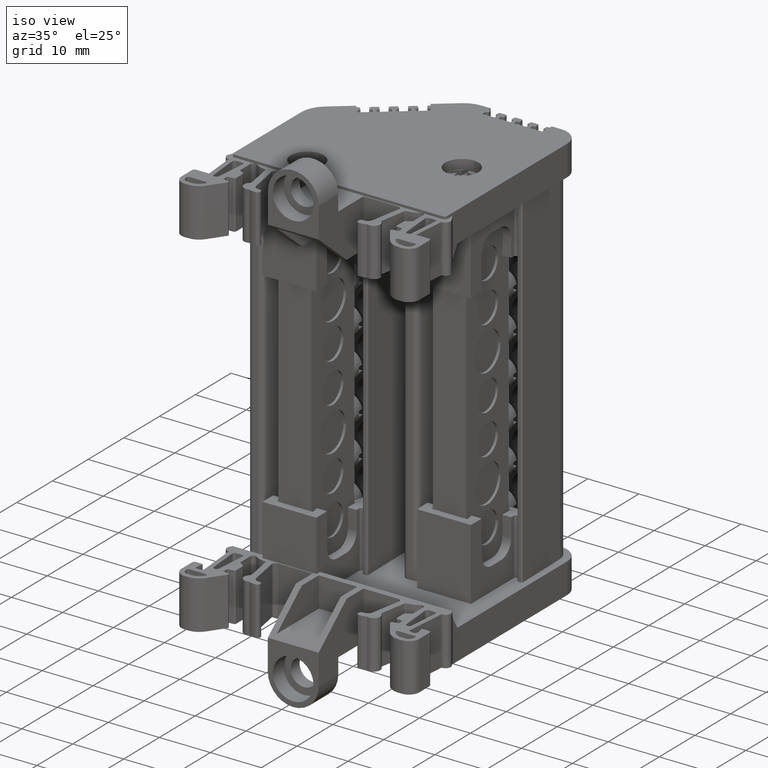
[diagram: clean part render]
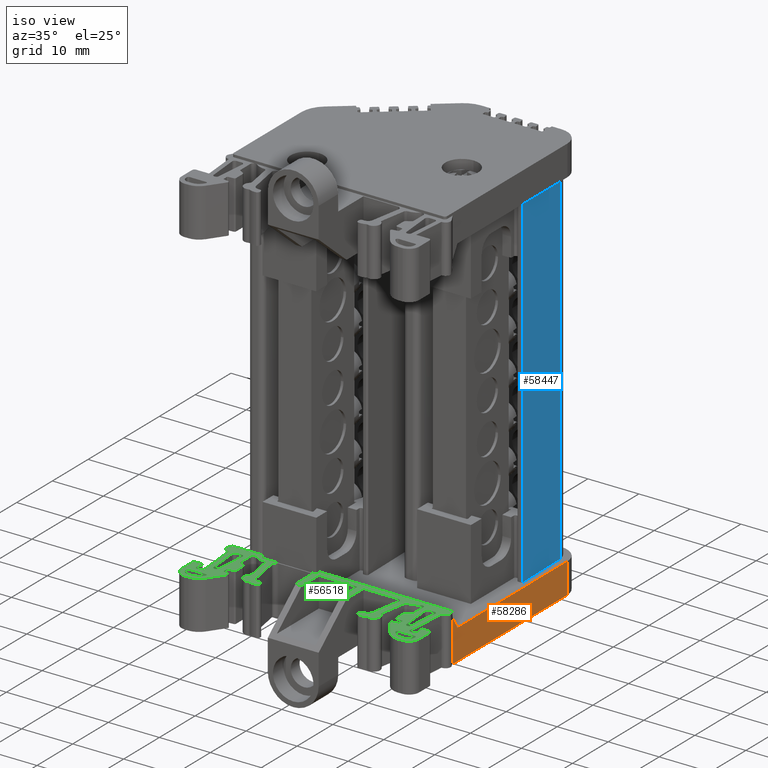
[diagram: same view with three faces highlighted in distinct colors, each labeled with its STEP entity id]
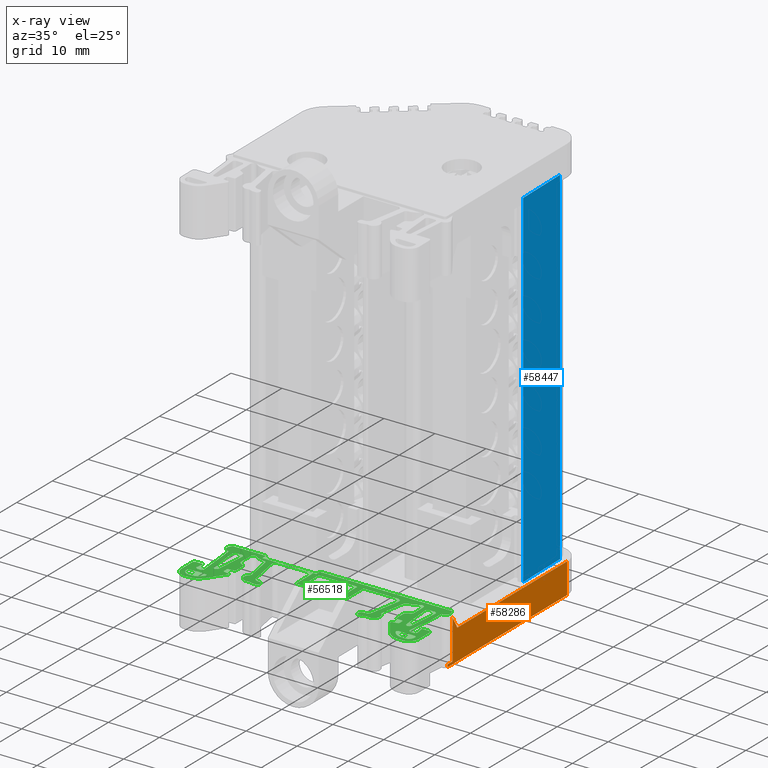
[diagram: x-ray of the same camera — body ghosted, the three highlighted faces saturated]
A machine part, iso view with three faces highlighted in distinct colors.
The next image is the same camera in x-ray (body ghosted, the three faces saturated) — at least one of them is partly hidden behind the body in this view.
Their STEP definitions:

[orange] entity #58286 — the highlighted planar face has unit normal (-1, -0, -0).
#956 = ORIENTED_EDGE ( 'NONE', *, *, #56904, .F. ) ;
#961 = ORIENTED_EDGE ( 'NONE', *, *, #53563, .T. ) ;
#966 = ORIENTED_EDGE ( 'NONE', *, *, #56910, .F. ) ;
#987 = ORIENTED_EDGE ( 'NONE', *, *, #56879, .T. ) ;
#1003 = ORIENTED_EDGE ( 'NONE', *, *, #56918, .F. ) ;
#1020 = ORIENTED_EDGE ( 'NONE', *, *, #56934, .F. ) ;
#1847 = ORIENTED_EDGE ( 'NONE', *, *, #56882, .F. ) ;
#4654 = PLANE ( 'NONE',  #11123 ) ;
#4678 = DIRECTION ( 'NONE',  ( -1.000000000000000000, -5.567141245485240800E-032, -6.938893903895729800E-018 ) ) ;
#4686 = CARTESIAN_POINT ( 'NONE',  ( -25.88403632107860000, 12.41911145422002100, 9.795974490130539900 ) ) ;
#4702 = DIRECTION ( 'NONE',  ( -6.938893903895729800E-018, 0.0000000000000000000, 1.000000000000000000 ) ) ;
#4704 = FACE_OUTER_BOUND ( 'NONE', #46010, .T. ) ;
#11123 = AXIS2_PLACEMENT_3D ( 'NONE', #4686, #4678, #4702 ) ;
#13348 = CARTESIAN_POINT ( 'NONE',  ( -25.88403632107861800, 11.42205551702720400, -42.06280227554849900 ) ) ;
#13368 = DIRECTION ( 'NONE',  ( -6.282516687065767900E-076, -1.000000000000000000, 3.575809622405604900E-046 ) ) ;
#13383 = LINE ( 'NONE', #13348, #13393 ) ;
#13386 = VECTOR ( 'NONE', #13416, 1000.000000000000000 ) ;
#13393 = VECTOR ( 'NONE', #13368, 1000.000000000000000 ) ;
#13402 = VECTOR ( 'NONE', #13770, 1000.000000000000000 ) ;
#13404 = VECTOR ( 'NONE', #13568, 1000.000000000000000 ) ;
#13416 = DIRECTION ( 'NONE',  ( 0.0000000000000000000, -1.000000000000000000, -0.0000000000000000000 ) ) ;
#13417 = VECTOR ( 'NONE', #13643, 1000.000000000000000 ) ;
#13419 = VECTOR ( 'NONE', #13688, 1000.000000000000200 ) ;
#13441 = LINE ( 'NONE', #13444, #13386 ) ;
#13444 = CARTESIAN_POINT ( 'NONE',  ( -25.88403632107859300, -10.62764597436904000, -41.56427430695350000 ) ) ;
#13557 = CARTESIAN_POINT ( 'NONE',  ( -25.88403632107860000, 45.48168290469490000, 9.795974490130539900 ) ) ;
#13568 = DIRECTION ( 'NONE',  ( -6.938893903895729800E-018, 0.0000000000000000000, 1.000000000000000000 ) ) ;
#13599 = LINE ( 'NONE', #13557, #13417 ) ;
#13617 = LINE ( 'NONE', #13626, #13404 ) ;
#13626 = CARTESIAN_POINT ( 'NONE',  ( -25.88403632107860000, 13.41374584738997600, 9.795974490130539900 ) ) ;
#13643 = DIRECTION ( 'NONE',  ( 6.938893903895729800E-018, -0.0000000000000000000, -1.000000000000000000 ) ) ;
#13661 = LINE ( 'NONE', #13704, #13419 ) ;
#13688 = DIRECTION ( 'NONE',  ( 0.0000000000000000000, 0.4999999999999241200, -0.8660254037844823400 ) ) ;
#13692 = CARTESIAN_POINT ( 'NONE',  ( -25.88403632107860000, 11.92058348562462000, 9.795974490130539900 ) ) ;
#13704 = CARTESIAN_POINT ( 'NONE',  ( -25.88403632107860000, 13.41374584738995600, -33.81500020757479100 ) ) ;
#13725 = LINE ( 'NONE', #13692, #13402 ) ;
#13770 = DIRECTION ( 'NONE',  ( -6.938893903895729800E-018, 0.0000000000000000000, 1.000000000000000000 ) ) ;
#21571 = LINE ( 'NONE', #21590, #59661 ) ;
#21584 = DIRECTION ( 'NONE',  ( 5.567141245485240800E-032, -1.000000000000000000, 3.862980245042401700E-049 ) ) ;
#21590 = CARTESIAN_POINT ( 'NONE',  ( -25.88403632107860000, 12.41911145422002100, -36.09779384098927600 ) ) ;
#31723 = CARTESIAN_POINT ( 'NONE',  ( -25.88403632107860000, 14.73171736614594700, -36.09779384098932600 ) ) ;
#33144 = CARTESIAN_POINT ( 'NONE',  ( -25.88403632107861800, 45.48168290469490000, -36.09779384098936100 ) ) ;
#35052 = CARTESIAN_POINT ( 'NONE',  ( -25.88403632107859700, 13.41374584738997600, -41.56427430695350000 ) ) ;
#35054 = CARTESIAN_POINT ( 'NONE',  ( -25.88403632107861800, 45.48168290469488500, -42.06280227554849900 ) ) ;
#35065 = CARTESIAN_POINT ( 'NONE',  ( -25.88403632107860700, 13.41374584738998100, -33.81500020757484700 ) ) ;
#35073 = CARTESIAN_POINT ( 'NONE',  ( -25.88403632107860000, 11.92058348562462400, -41.56427430695350000 ) ) ;
#35090 = CARTESIAN_POINT ( 'NONE',  ( -25.88403632107860000, 11.92058348562462000, -42.06280227554849900 ) ) ;
#46010 = EDGE_LOOP ( 'NONE', ( #956, #987, #1020, #1847, #966, #961, #1003 ) ) ;
#46491 = VERTEX_POINT ( 'NONE', #35065 ) ;
#46507 = VERTEX_POINT ( 'NONE', #35054 ) ;
#46525 = VERTEX_POINT ( 'NONE', #35073 ) ;
#46559 = VERTEX_POINT ( 'NONE', #35052 ) ;
#46591 = VERTEX_POINT ( 'NONE', #35090 ) ;
#50338 = VERTEX_POINT ( 'NONE', #33144 ) ;
#50384 = VERTEX_POINT ( 'NONE', #31723 ) ;
#53563 = EDGE_CURVE ( 'NONE', #50338, #50384, #21571, .T. ) ;
#56879 = EDGE_CURVE ( 'NONE', #46559, #46525, #13441, .T. ) ;
#56882 = EDGE_CURVE ( 'NONE', #46507, #46591, #13383, .T. ) ;
#56904 = EDGE_CURVE ( 'NONE', #46559, #46491, #13617, .T. ) ;
#56910 = EDGE_CURVE ( 'NONE', #50338, #46507, #13599, .T. ) ;
#56918 = EDGE_CURVE ( 'NONE', #46491, #50384, #13661, .T. ) ;
#56934 = EDGE_CURVE ( 'NONE', #46591, #46525, #13725, .T. ) ;
#58286 = ADVANCED_FACE ( 'NONE', ( #4704 ), #4654, .F. ) ;
#59661 = VECTOR ( 'NONE', #21584, 1000.000000000000000 ) ;

[blue] entity #58447 — the highlighted planar face has unit normal (-0.9998, -0.0175, 0).
#4313 = DIRECTION ( 'NONE',  ( -0.9998476951563916000, -0.01745240643726290300, 6.701918548398456300E-015 ) ) ;
#4320 = CARTESIAN_POINT ( 'NONE',  ( -27.17181190912783300, 34.97629996017929000, -37.10821079711177400 ) ) ;
#4333 = PLANE ( 'NONE',  #11386 ) ;
#4335 = DIRECTION ( 'NONE',  ( 0.01745240643726290300, -0.9998476951563916000, 0.0000000000000000000 ) ) ;
#4340 = FACE_OUTER_BOUND ( 'NONE', #42429, .T. ) ;
#7515 = VECTOR ( 'NONE', #22881, 1000.000000000000000 ) ;
#7557 = VECTOR ( 'NONE', #22330, 1000.000000000000000 ) ;
#9593 = CARTESIAN_POINT ( 'NONE',  ( -27.17181190912777200, 34.97629996017600000, -37.10821079711177400 ) ) ;
#9599 = LINE ( 'NONE', #9593, #14230 ) ;
#9619 = DIRECTION ( 'NONE',  ( 6.700897813742065900E-015, 1.169646064160809000E-016, 1.000000000000000000 ) ) ;
#11386 = AXIS2_PLACEMENT_3D ( 'NONE', #4320, #4313, #4335 ) ;
#14230 = VECTOR ( 'NONE', #9619, 1000.000000000000000 ) ;
#21745 = LINE ( 'NONE', #21755, #59366 ) ;
#21755 = CARTESIAN_POINT ( 'NONE',  ( -27.17181190912772900, 34.97629996017600000, -36.09779384098944600 ) ) ;
#21780 = CARTESIAN_POINT ( 'NONE',  ( -27.35670888277328700, 45.56904048598334400, -37.10821079711177400 ) ) ;
#21798 = DIRECTION ( 'NONE',  ( 0.01745240643727346400, -0.9998476951563913800, -0.0000000000000000000 ) ) ;
#22330 = DIRECTION ( 'NONE',  ( -6.700897813742065900E-015, -1.169646064160809000E-016, -1.000000000000000000 ) ) ;
#22881 = DIRECTION ( 'NONE',  ( 0.01745240643726290300, -0.9998476951563916000, 0.0000000000000000000 ) ) ;
#22888 = LINE ( 'NONE', #22929, #7515 ) ;
#22929 = CARTESIAN_POINT ( 'NONE',  ( -27.17181190912737100, 34.97629996017929700, 31.97218928989244800 ) ) ;
#22997 = LINE ( 'NONE', #21780, #7557 ) ;
#31720 = CARTESIAN_POINT ( 'NONE',  ( -27.17181190912729200, 34.97629996017578700, 31.97218928989245500 ) ) ;
#31843 = CARTESIAN_POINT ( 'NONE',  ( -27.17181190912772900, 34.97629996017600000, -36.09779384098944600 ) ) ;
#33110 = CARTESIAN_POINT ( 'NONE',  ( -27.35670888277296300, 45.56904048598334400, 31.97218928989244100 ) ) ;
#33146 = CARTESIAN_POINT ( 'NONE',  ( -27.35670888277335400, 45.56904048598342900, -36.09779384098944600 ) ) ;
#42429 = EDGE_LOOP ( 'NONE', ( #54754, #54680, #54642, #54689 ) ) ;
#50322 = VERTEX_POINT ( 'NONE', #33146 ) ;
#50335 = VERTEX_POINT ( 'NONE', #33110 ) ;
#50356 = VERTEX_POINT ( 'NONE', #31720 ) ;
#50491 = VERTEX_POINT ( 'NONE', #31843 ) ;
#53470 = EDGE_CURVE ( 'NONE', #50335, #50322, #22997, .T. ) ;
#53482 = EDGE_CURVE ( 'NONE', #50335, #50356, #22888, .T. ) ;
#53626 = EDGE_CURVE ( 'NONE', #50322, #50491, #21745, .T. ) ;
#54642 = ORIENTED_EDGE ( 'NONE', *, *, #53626, .F. ) ;
#54680 = ORIENTED_EDGE ( 'NONE', *, *, #57248, .F. ) ;
#54689 = ORIENTED_EDGE ( 'NONE', *, *, #53470, .F. ) ;
#54754 = ORIENTED_EDGE ( 'NONE', *, *, #53482, .T. ) ;
#57248 = EDGE_CURVE ( 'NONE', #50491, #50356, #9599, .T. ) ;
#58447 = ADVANCED_FACE ( 'NONE', ( #4340 ), #4333, .F. ) ;
#59366 = VECTOR ( 'NONE', #21798, 1000.000000000000200 ) ;

[green] entity #56518 — the highlighted planar face has unit normal (-0, 0, 1).
#2502 = B_SPLINE_CURVE_WITH_KNOTS ( 'NONE', 3,
 ( #8294, #8297, #8348, #8375 ),
 .UNSPECIFIED., .F., .F.,
 ( 4, 4 ),
 ( 0.0000000000000000000, 1.000000000000000000 ),
 .UNSPECIFIED. ) ;
#2510 = B_SPLINE_CURVE_WITH_KNOTS ( 'NONE', 3,
 ( #8325, #8295, #8329, #8298 ),
 .UNSPECIFIED., .F., .F.,
 ( 4, 4 ),
 ( 0.0000000000000000000, 1.000000000000000000 ),
 .UNSPECIFIED. ) ;
#2514 = B_SPLINE_CURVE_WITH_KNOTS ( 'NONE', 3,
 ( #8793, #8817, #8783, #8818 ),
 .UNSPECIFIED., .F., .F.,
 ( 4, 4 ),
 ( 0.0000000000000000000, 1.000000000000000000 ),
 .UNSPECIFIED. ) ;
#2515 = B_SPLINE_CURVE_WITH_KNOTS ( 'NONE', 3,
 ( #9527, #9529, #9532, #9534 ),
 .UNSPECIFIED., .F., .F.,
 ( 4, 4 ),
 ( 0.0000000000000000000, 1.000000000000000000 ),
 .UNSPECIFIED. ) ;
#7702 = DIRECTION ( 'NONE',  ( -1.000000000000000000, 2.018221001525949000E-014, 0.0000000000000000000 ) ) ;
#7784 = DIRECTION ( 'NONE',  ( -6.093150577467555700E-076, -1.000000000000000000, 3.468028427291094800E-046 ) ) ;
#8293 = DIRECTION ( 'NONE',  ( 0.0000000000000000000, 0.0000000000000000000, -1.000000000000000000 ) ) ;
#8294 = CARTESIAN_POINT ( 'NONE',  ( -28.92763558614225200, 9.982727629559109400, -32.09224290364844700 ) ) ;
#8295 = CARTESIAN_POINT ( 'NONE',  ( -64.71611886262259400, 10.01169401314790600, -32.09224290364844700 ) ) ;
#8296 = DIRECTION ( 'NONE',  ( 0.0000000000000000000, 0.0000000000000000000, -1.000000000000000000 ) ) ;
#8297 = CARTESIAN_POINT ( 'NONE',  ( -28.92825792728451300, 9.997210770287228600, -32.09224290364844700 ) ) ;
#8298 = CARTESIAN_POINT ( 'NONE',  ( -64.71738356224274500, 9.982727629558995700, -32.09224290364844700 ) ) ;
#8303 = CARTESIAN_POINT ( 'NONE',  ( -23.52410936040080000, 11.42205551702720400, -32.09224290364844700 ) ) ;
#8304 = LINE ( 'NONE', #8358, #14609 ) ;
#8309 = DIRECTION ( 'NONE',  ( -1.000000000000000000, 0.0000000000000000000, 0.0000000000000000000 ) ) ;
#8310 = CARTESIAN_POINT ( 'NONE',  ( -26.91125396329432100, 9.982753668836506800, -32.09224290364844700 ) ) ;
#8313 = LINE ( 'NONE', #8310, #14594 ) ;
#8317 = DIRECTION ( 'NONE',  ( 0.0000000000000000000, 0.0000000000000000000, -1.000000000000000000 ) ) ;
#8319 = DIRECTION ( 'NONE',  ( -1.000000000000000000, 0.0000000000000000000, 0.0000000000000000000 ) ) ;
#8321 = DIRECTION ( 'NONE',  ( -0.08710351041734172600, -0.9961992664487240300, 0.0000000000000000000 ) ) ;
#8325 = CARTESIAN_POINT ( 'NONE',  ( -64.71548651281251800, 10.02617720494236100, -32.09224290364844700 ) ) ;
#8326 = DIRECTION ( 'NONE',  ( -1.000000000000000000, 0.0000000000000000000, 0.0000000000000000000 ) ) ;
#8327 = DIRECTION ( 'NONE',  ( 6.093150577467555700E-076, 1.000000000000000000, -3.468028427291094800E-046 ) ) ;
#8329 = CARTESIAN_POINT ( 'NONE',  ( -64.71675121243266900, 9.997210821353450100, -32.09224290364844700 ) ) ;
#8331 = CARTESIAN_POINT ( 'NONE',  ( -68.12679791360422100, 0.6686412226661678800, -32.09224290364844700 ) ) ;
#8332 = CARTESIAN_POINT ( 'NONE',  ( -26.15811495987020100, 2.592641183054170000, -32.09224290364844700 ) ) ;
#8334 = CARTESIAN_POINT ( 'NONE',  ( -27.40788715991285000, 10.02617720494236100, -32.09224290364844700 ) ) ;
#8335 = LINE ( 'NONE', #8303, #14588 ) ;
#8337 = CARTESIAN_POINT ( 'NONE',  ( -69.62239988585540100, 3.589689513311057100, -32.09224290364844700 ) ) ;
#8338 = CARTESIAN_POINT ( 'NONE',  ( -51.09073332295690100, 10.52470517353735600, -32.09224290364844700 ) ) ;
#8339 = DIRECTION ( 'NONE',  ( -0.9848141832495763700, -0.1736117060294895300, 0.0000000000000000000 ) ) ;
#8342 = DIRECTION ( 'NONE',  ( -1.000000000000000000, -1.794215868813569100E-015, 0.0000000000000000000 ) ) ;
#8344 = LINE ( 'NONE', #8352, #14630 ) ;
#8345 = DIRECTION ( 'NONE',  ( 1.000000000000000000, 0.0000000000000000000, 1.756949432570529700E-030 ) ) ;
#8346 = CARTESIAN_POINT ( 'NONE',  ( -25.51822123478080000, 0.6686412226661632200, -32.09224290364844700 ) ) ;
#8348 = CARTESIAN_POINT ( 'NONE',  ( -28.92888026842677400, 10.01169391101542100, -32.09224290364844700 ) ) ;
#8352 = CARTESIAN_POINT ( 'NONE',  ( -29.78838429657174900, 3.650746117920575800, -32.09224290364844700 ) ) ;
#8355 = CARTESIAN_POINT ( 'NONE',  ( -26.64907370669581600, 2.679183914619511800, -32.09224290364844700 ) ) ;
#8356 = DIRECTION ( 'NONE',  ( 0.08710351041733822900, 0.9961992664487243600, 0.0000000000000000000 ) ) ;
#8358 = CARTESIAN_POINT ( 'NONE',  ( -30.88540741133443000, 3.025241881214412000, -32.09224290364844700 ) ) ;
#8361 = LINE ( 'NONE', #8355, #14596 ) ;
#8367 = DIRECTION ( 'NONE',  ( 0.5736077411146210900, -0.8191301235660800600, 0.0000000000000000000 ) ) ;
#8370 = CARTESIAN_POINT ( 'NONE',  ( -68.12679791360422100, 0.6686412226661678800, -32.09224290364844000 ) ) ;
#8372 = DIRECTION ( 'NONE',  ( 0.0000000000000000000, 0.0000000000000000000, -1.000000000000000000 ) ) ;
#8374 = DIRECTION ( 'NONE',  ( -1.000000000000000000, 0.0000000000000000000, 0.0000000000000000000 ) ) ;
#8375 = CARTESIAN_POINT ( 'NONE',  ( -28.92951762257074600, 10.02617712834298700, -32.09224290364844700 ) ) ;
#8377 = DIRECTION ( 'NONE',  ( -0.0000000000000000000, -0.0000000000000000000, 1.000000000000000000 ) ) ;
#8378 = DIRECTION ( 'NONE',  ( -0.0000000000000000000, -0.0000000000000000000, 1.000000000000000000 ) ) ;
#8379 = DIRECTION ( 'NONE',  ( -1.000000000000000000, 0.0000000000000000000, 0.0000000000000000000 ) ) ;
#8380 = LINE ( 'NONE', #8338, #14578 ) ;
#8383 = DIRECTION ( 'NONE',  ( -1.000000000000000000, 0.0000000000000000000, 0.0000000000000000000 ) ) ;
#8386 = CARTESIAN_POINT ( 'NONE',  ( -51.09073332295690100, -1.325470651713841300, -32.09224290364844700 ) ) ;
#8393 = DIRECTION ( 'NONE',  ( 1.000000000000000000, 0.0000000000000000000, 1.756949432570529700E-030 ) ) ;
#8394 = LINE ( 'NONE', #8405, #14605 ) ;
#8405 = CARTESIAN_POINT ( 'NONE',  ( -25.39367753908719300, 11.42205551702720400, -32.09224290364844700 ) ) ;
#8410 = CARTESIAN_POINT ( 'NONE',  ( -65.21401448140751700, 10.02617720494236100, -32.09224290364844700 ) ) ;
#8422 = DIRECTION ( 'NONE',  ( -0.1736371585637144800, -0.9848096959138447100, 0.0000000000000000000 ) ) ;
#8423 = DIRECTION ( 'NONE',  ( 6.093150577467555700E-076, 1.000000000000000000, -3.468028427291094800E-046 ) ) ;
#8424 = CARTESIAN_POINT ( 'NONE',  ( -60.92960436518970400, 10.11878057843015800, -32.09224290364844700 ) ) ;
#8425 = DIRECTION ( 'NONE',  ( 0.0000000000000000000, 0.0000000000000000000, -1.000000000000000000 ) ) ;
#8427 = CARTESIAN_POINT ( 'NONE',  ( -64.02142592279889800, -29.92678038736905000, -32.09224290364844700 ) ) ;
#8429 = DIRECTION ( 'NONE',  ( -0.0000000000000000000, -0.0000000000000000000, 1.000000000000000000 ) ) ;
#8431 = CARTESIAN_POINT ( 'NONE',  ( -36.39355681949194800, 4.811504339307409900, -32.09224290364844700 ) ) ;
#8433 = LINE ( 'NONE', #8469, #11762 ) ;
#8434 = LINE ( 'NONE', #8386, #14581 ) ;
#8437 = DIRECTION ( 'NONE',  ( 0.0000000000000000000, 0.0000000000000000000, -1.000000000000000000 ) ) ;
#8439 = LINE ( 'NONE', #8443, #11844 ) ;
#8440 = LINE ( 'NONE', #8499, #13187 ) ;
#8442 = LINE ( 'NONE', #8505, #11841 ) ;
#8443 = CARTESIAN_POINT ( 'NONE',  ( -49.96710536100780300, 6.011457176249989800, -32.09224290364844700 ) ) ;
#8448 = DIRECTION ( 'NONE',  ( -0.0000000000000000000, -0.0000000000000000000, -1.000000000000000000 ) ) ;
#8449 = LINE ( 'NONE', #8523, #11944 ) ;
#8453 = CARTESIAN_POINT ( 'NONE',  ( -60.70859479149780200, 14.10087593621700500, -32.09224290364844700 ) ) ;
#8457 = LINE ( 'NONE', #8507, #11821 ) ;
#8458 = DIRECTION ( 'NONE',  ( -1.000000000000000000, 0.0000000000000000000, 0.0000000000000000000 ) ) ;
#8465 = DIRECTION ( 'NONE',  ( -1.000000000000000000, -0.0000000000000000000, -0.0000000000000000000 ) ) ;
#8466 = CARTESIAN_POINT ( 'NONE',  ( -27.91929140627805200, 4.177267871130645500, -32.09224290364844700 ) ) ;
#8467 = DIRECTION ( 'NONE',  ( -0.0000000000000000000, -1.000000000000000000, -0.0000000000000000000 ) ) ;
#8468 = DIRECTION ( 'NONE',  ( 0.0000000000000000000, 0.0000000000000000000, -1.000000000000000000 ) ) ;
#8469 = CARTESIAN_POINT ( 'NONE',  ( -51.09073332295690100, 11.22264432959170800, -32.09224290364844700 ) ) ;
#8470 = CARTESIAN_POINT ( 'NONE',  ( -43.03369701287485300, 11.42205551702720400, -32.09224290364844700 ) ) ;
#8471 = DIRECTION ( 'NONE',  ( -0.0000000000000000000, -0.0000000000000000000, -1.000000000000000000 ) ) ;
#8472 = DIRECTION ( 'NONE',  ( -6.093150577467555700E-076, -1.000000000000000000, 3.468028427291094800E-046 ) ) ;
#8473 = CARTESIAN_POINT ( 'NONE',  ( -47.10250957419252400, 4.088199415439874900, -32.09224290364844700 ) ) ;
#8478 = DIRECTION ( 'NONE',  ( 1.000000000000000000, 0.0000000000000000000, 1.756949432570529700E-030 ) ) ;
#8480 = LINE ( 'NONE', #8473, #13133 ) ;
#8483 = CARTESIAN_POINT ( 'NONE',  ( -58.37179495304390300, 2.308927385588840100, -32.09224290364844700 ) ) ;
#8485 = LINE ( 'NONE', #8470, #11894 ) ;
#8486 = DIRECTION ( 'NONE',  ( 0.0000000000000000000, 0.0000000000000000000, -1.000000000000000000 ) ) ;
#8488 = CARTESIAN_POINT ( 'NONE',  ( -25.88463346532639900, 11.42205551700835800, -32.09224290364845400 ) ) ;
#8490 = LINE ( 'NONE', #8427, #11808 ) ;
#8492 = DIRECTION ( 'NONE',  ( -1.000000000000000000, 0.0000000000000000000, 0.0000000000000000000 ) ) ;
#8494 = CARTESIAN_POINT ( 'NONE',  ( -63.82201596516300400, 3.847128051642844800, -32.09224290364844700 ) ) ;
#8495 = DIRECTION ( 'NONE',  ( 0.0000000000000000000, 0.0000000000000000000, -1.000000000000000000 ) ) ;
#8497 = DIRECTION ( 'NONE',  ( -1.000000000000000000, 0.0000000000000000000, 0.0000000000000000000 ) ) ;
#8499 = CARTESIAN_POINT ( 'NONE',  ( -47.10250957419252400, 2.094113214459290000, -32.09224290364844700 ) ) ;
#8501 = DIRECTION ( 'NONE',  ( 1.000000000000000000, 0.0000000000000000000, -0.0000000000000000000 ) ) ;
#8503 = DIRECTION ( 'NONE',  ( 0.0000000000000000000, 0.0000000000000000000, -1.000000000000000000 ) ) ;
#8505 = CARTESIAN_POINT ( 'NONE',  ( -34.37460030079460400, 10.46954577266141800, -32.09224290364844700 ) ) ;
#8507 = CARTESIAN_POINT ( 'NONE',  ( -46.82250957419249500, 2.568151965270909700, -32.09224290364844700 ) ) ;
#8508 = DIRECTION ( 'NONE',  ( 1.000000000000000000, 1.739845690970733800E-015, 0.0000000000000000000 ) ) ;
#8509 = DIRECTION ( 'NONE',  ( -1.000000000000000000, 0.0000000000000000000, 0.0000000000000000000 ) ) ;
#8511 = CARTESIAN_POINT ( 'NONE',  ( -46.82250957419249500, -0.4281203082428309800, -32.09224290364844700 ) ) ;
#8512 = DIRECTION ( 'NONE',  ( 1.000000000000000000, 0.0000000000000000000, -0.0000000000000000000 ) ) ;
#8513 = LINE ( 'NONE', #8550, #11948 ) ;
#8514 = DIRECTION ( 'NONE',  ( -1.000000000000000000, 0.0000000000000000000, 0.0000000000000000000 ) ) ;
#8515 = CARTESIAN_POINT ( 'NONE',  ( -36.71478198437225200, 3.265951153734130100, -32.09224290364844700 ) ) ;
#8517 = DIRECTION ( 'NONE',  ( -1.000000000000000000, 0.0000000000000000000, 0.0000000000000000000 ) ) ;
#8518 = DIRECTION ( 'NONE',  ( 1.000000000000000000, -3.479691381941455600E-014, 0.0000000000000000000 ) ) ;
#8521 = DIRECTION ( 'NONE',  ( -0.0000000000000000000, -1.000000000000000000, -0.0000000000000000000 ) ) ;
#8523 = CARTESIAN_POINT ( 'NONE',  ( -56.43160840355399400, -29.92678038736905000, -32.09224290364844700 ) ) ;
#8524 = CARTESIAN_POINT ( 'NONE',  ( -67.76098282730639300, 11.42205551700835800, -32.09224290364844700 ) ) ;
#8525 = LINE ( 'NONE', #8565, #13699 ) ;
#8529 = DIRECTION ( 'NONE',  ( -1.000000000000000000, 0.0000000000000000000, 0.0000000000000000000 ) ) ;
#8530 = DIRECTION ( 'NONE',  ( 1.000000000000000000, 0.0000000000000000000, 1.756949432570529700E-030 ) ) ;
#8532 = DIRECTION ( 'NONE',  ( 6.093150577467555700E-076, 1.000000000000000000, -3.468028427291094800E-046 ) ) ;
#8533 = CARTESIAN_POINT ( 'NONE',  ( -65.71014727590539900, 0.8976460898312909100, -32.09224290364844700 ) ) ;
#8534 = DIRECTION ( 'NONE',  ( -1.000000000000000000, 0.0000000000000000000, 0.0000000000000000000 ) ) ;
#8536 = DIRECTION ( 'NONE',  ( 0.0000000000000000000, 0.0000000000000000000, -1.000000000000000000 ) ) ;
#8537 = CARTESIAN_POINT ( 'NONE',  ( -32.93642435688730100, 14.10087593621698000, -32.09224290364844700 ) ) ;
#8538 = DIRECTION ( 'NONE',  ( -1.000000000000000000, -0.0000000000000000000, -1.756949432570529700E-030 ) ) ;
#8539 = CARTESIAN_POINT ( 'NONE',  ( -62.87616026712331100, 5.182158454427670000, -32.09224290364844000 ) ) ;
#8541 = LINE ( 'NONE', #8511, #11951 ) ;
#8542 = LINE ( 'NONE', #8575, #13212 ) ;
#8545 = CARTESIAN_POINT ( 'NONE',  ( -51.09073332295690100, 11.22264432959167900, -32.09224290364844700 ) ) ;
#8546 = CARTESIAN_POINT ( 'NONE',  ( -51.09073332295690100, 11.22264432959170900, -32.09224290364844700 ) ) ;
#8547 = DIRECTION ( 'NONE',  ( -1.000000000000000000, 0.0000000000000000000, 0.0000000000000000000 ) ) ;
#8548 = DIRECTION ( 'NONE',  ( 6.093150577467555700E-076, 1.000000000000000000, -3.468028427291094800E-046 ) ) ;
#8549 = CARTESIAN_POINT ( 'NONE',  ( -63.27408835919230500, 10.92352754841270000, -32.09224290364844700 ) ) ;
#8550 = CARTESIAN_POINT ( 'NONE',  ( -51.09073332295690100, 3.764579914192923500, -32.09224290364844700 ) ) ;
#8552 = DIRECTION ( 'NONE',  ( -1.000000000000000000, 0.0000000000000000000, 0.0000000000000000000 ) ) ;
#8554 = LINE ( 'NONE', #8578, #12097 ) ;
#8556 = DIRECTION ( 'NONE',  ( -1.000000000000000000, 0.0000000000000000000, 0.0000000000000000000 ) ) ;
#8558 = CARTESIAN_POINT ( 'NONE',  ( -51.09073332295690100, 2.568151965270850700, -32.09224290364844700 ) ) ;
#8560 = DIRECTION ( 'NONE',  ( 0.0000000000000000000, 0.0000000000000000000, -1.000000000000000000 ) ) ;
#8562 = LINE ( 'NONE', #8580, #11881 ) ;
#8564 = CARTESIAN_POINT ( 'NONE',  ( -62.57705949655599700, 11.42205551702720400, -32.09224290364844700 ) ) ;
#8565 = CARTESIAN_POINT ( 'NONE',  ( -51.09073332295690100, 4.088199415439872200, -32.09224290364844700 ) ) ;
#8566 = CARTESIAN_POINT ( 'NONE',  ( -63.07544601612038800, 6.983914639744130100, -32.09224290364844700 ) ) ;
#8567 = LINE ( 'NONE', #8545, #13495 ) ;
#8568 = DIRECTION ( 'NONE',  ( -0.0000000000000000000, -0.0000000000000000000, 1.000000000000000000 ) ) ;
#8569 = CARTESIAN_POINT ( 'NONE',  ( -68.01157767929420600, 2.592641183054274800, -32.09224290364844700 ) ) ;
#8570 = DIRECTION ( 'NONE',  ( -1.000000000000000000, -1.988395075395374500E-015, 0.0000000000000000000 ) ) ;
#8573 = CARTESIAN_POINT ( 'NONE',  ( -30.12167133169669600, 7.817988302000100200, -32.09224290364844700 ) ) ;
#8574 = DIRECTION ( 'NONE',  ( -1.000000000000000000, 0.0000000000000000000, 0.0000000000000000000 ) ) ;
#8575 = CARTESIAN_POINT ( 'NONE',  ( -73.41990458191253300, -25.19389111586334800, -32.09224290364844700 ) ) ;
#8576 = DIRECTION ( 'NONE',  ( 0.1736400781270108500, -0.9848091811452843700, 0.0000000000000000000 ) ) ;
#8577 = CARTESIAN_POINT ( 'NONE',  ( -36.71490084270224900, 3.066661867399632000, -32.09224290364844700 ) ) ;
#8578 = CARTESIAN_POINT ( 'NONE',  ( -60.43864944465951100, 10.20534501384514100, -32.09224290364844700 ) ) ;
#8579 = DIRECTION ( 'NONE',  ( 0.0000000000000000000, 0.0000000000000000000, -1.000000000000000000 ) ) ;
#8580 = CARTESIAN_POINT ( 'NONE',  ( -50.61132213551890400, 11.42205551702720400, -32.09224290364844700 ) ) ;
#8581 = DIRECTION ( 'NONE',  ( 0.0000000000000000000, 0.0000000000000000000, -1.000000000000000000 ) ) ;
#8582 = LINE ( 'NONE', #8564, #11864 ) ;
#8584 = DIRECTION ( 'NONE',  ( -1.000000000000000000, -0.0000000000000000000, -1.756949432570529700E-030 ) ) ;
#8585 = DIRECTION ( 'NONE',  ( 0.0000000000000000000, 0.0000000000000000000, -1.000000000000000000 ) ) ;
#8587 = DIRECTION ( 'NONE',  ( 0.0000000000000000000, 0.0000000000000000000, -1.000000000000000000 ) ) ;
#8588 = DIRECTION ( 'NONE',  ( -1.000000000000000000, -1.988395075395382400E-015, 0.0000000000000000000 ) ) ;
#8590 = DIRECTION ( 'NONE',  ( -0.9961937174961162900, -0.08716695028087220700, -0.0000000000000000000 ) ) ;
#8592 = DIRECTION ( 'NONE',  ( 0.0000000000000000000, 0.0000000000000000000, -1.000000000000000000 ) ) ;
#8593 = LINE ( 'NONE', #8573, #14163 ) ;
#8595 = LINE ( 'NONE', #8558, #11968 ) ;
#8596 = DIRECTION ( 'NONE',  ( 0.0000000000000000000, 0.0000000000000000000, -1.000000000000000000 ) ) ;
#8597 = DIRECTION ( 'NONE',  ( -0.8660306462564758600, -0.4999909196621382700, 0.0000000000000000000 ) ) ;
#8598 = LINE ( 'NONE', #8546, #12074 ) ;
#8599 = CARTESIAN_POINT ( 'NONE',  ( -30.52595015191705100, 10.92352754843470000, -32.09224290364844700 ) ) ;
#8604 = CARTESIAN_POINT ( 'NONE',  ( -35.27322419534120000, 2.308927385588834800, -32.09224290364844700 ) ) ;
#8605 = DIRECTION ( 'NONE',  ( 0.0000000000000000000, 0.0000000000000000000, -1.000000000000000000 ) ) ;
#8611 = DIRECTION ( 'NONE',  ( 1.000000000000000000, 0.0000000000000000000, 1.756949432570529700E-030 ) ) ;
#8613 = DIRECTION ( 'NONE',  ( 0.0000000000000000000, 0.0000000000000000000, -1.000000000000000000 ) ) ;
#8615 = DIRECTION ( 'NONE',  ( -1.000000000000000000, 0.0000000000000000000, 0.0000000000000000000 ) ) ;
#8618 = CARTESIAN_POINT ( 'NONE',  ( -56.93011830568269700, 3.066661867399689700, -32.09224290364844700 ) ) ;
#8619 = DIRECTION ( 'NONE',  ( -1.000000000000000000, -2.087814829164774800E-015, 0.0000000000000000000 ) ) ;
#8620 = DIRECTION ( 'NONE',  ( 0.0000000000000000000, 0.0000000000000000000, -1.000000000000000000 ) ) ;
#8621 = LINE ( 'NONE', #8640, #20870 ) ;
#8623 = CARTESIAN_POINT ( 'NONE',  ( -51.09073332295690100, 1.196762870988283800, -32.09224290364844700 ) ) ;
#8624 = DIRECTION ( 'NONE',  ( 0.0000000000000000000, 0.0000000000000000000, -1.000000000000000000 ) ) ;
#8626 = DIRECTION ( 'NONE',  ( 0.0000000000000000000, 0.0000000000000000000, -1.000000000000000000 ) ) ;
#8627 = DIRECTION ( 'NONE',  ( -0.0000000000000000000, -0.0000000000000000000, 1.000000000000000000 ) ) ;
#8628 = CARTESIAN_POINT ( 'NONE',  ( -30.37093078919264900, 10.92352754841270000, -32.09224290364844700 ) ) ;
#8629 = CARTESIAN_POINT ( 'NONE',  ( -67.36331140269159300, 1.665669461814499800, -32.09224290364844700 ) ) ;
#8631 = DIRECTION ( 'NONE',  ( -1.000000000000000000, 0.0000000000000000000, 0.0000000000000000000 ) ) ;
#8632 = LINE ( 'NONE', #8663, #11684 ) ;
#8634 = CARTESIAN_POINT ( 'NONE',  ( -34.86563824515275200, 10.55603930187504100, -32.09224290364844700 ) ) ;
#8636 = CARTESIAN_POINT ( 'NONE',  ( -68.49161423867991500, 3.888800341139845100, -32.09224290364844700 ) ) ;
#8637 = CARTESIAN_POINT ( 'NONE',  ( -67.76038568305870100, 11.42205551700835800, -32.09224290364844700 ) ) ;
#8639 = DIRECTION ( 'NONE',  ( 1.000000000000000000, -2.475049992240059700E-016, -0.0000000000000000000 ) ) ;
#8640 = CARTESIAN_POINT ( 'NONE',  ( -70.12090978798420300, 11.42205551702720400, -32.09224290364844700 ) ) ;
#8642 = CARTESIAN_POINT ( 'NONE',  ( -67.67353861084690400, 10.42878912377134000, -32.09224290364844700 ) ) ;
#8644 = DIRECTION ( 'NONE',  ( -6.093150577467555700E-076, -1.000000000000000000, 3.468028427291094800E-046 ) ) ;
#8645 = CARTESIAN_POINT ( 'NONE',  ( -34.72076899378924300, 3.964006661576545000, -32.09224290364844700 ) ) ;
#8646 = CARTESIAN_POINT ( 'NONE',  ( -26.28170774569335000, 1.665669461814489800, -32.09224290364844700 ) ) ;
#8648 = DIRECTION ( 'NONE',  ( -1.000000000000000000, -3.552184952358224700E-015, 0.0000000000000000000 ) ) ;
#8649 = CARTESIAN_POINT ( 'NONE',  ( -36.39342605802330200, 4.761633410349879200, -32.09224290364844700 ) ) ;
#8650 = DIRECTION ( 'NONE',  ( 0.0000000000000000000, 0.0000000000000000000, -1.000000000000000000 ) ) ;
#8651 = DIRECTION ( 'NONE',  ( 0.0000000000000000000, 0.0000000000000000000, -1.000000000000000000 ) ) ;
#8652 = DIRECTION ( 'NONE',  ( -1.000000000000000000, 0.0000000000000000000, 0.0000000000000000000 ) ) ;
#8653 = DIRECTION ( 'NONE',  ( -1.000000000000000000, 0.0000000000000000000, 0.0000000000000000000 ) ) ;
#8654 = DIRECTION ( 'NONE',  ( 1.000000000000000000, 0.0000000000000000000, 1.756949432570529700E-030 ) ) ;
#8655 = LINE ( 'NONE', #8623, #12054 ) ;
#8656 = DIRECTION ( 'NONE',  ( 1.000000000000000000, 1.739845690970727900E-015, 0.0000000000000000000 ) ) ;
#8657 = DIRECTION ( 'NONE',  ( -1.000000000000000000, 0.0000000000000000000, 0.0000000000000000000 ) ) ;
#8658 = LINE ( 'NONE', #8679, #11654 ) ;
#8659 = DIRECTION ( 'NONE',  ( -1.000000000000000000, 0.0000000000000000000, 0.0000000000000000000 ) ) ;
#8661 = DIRECTION ( 'NONE',  ( -1.000000000000000000, 0.0000000000000000000, 0.0000000000000000000 ) ) ;
#8663 = CARTESIAN_POINT ( 'NONE',  ( -46.82250957419249500, 3.764579914192924800, -32.09224290364844700 ) ) ;
#8665 = DIRECTION ( 'NONE',  ( -0.0000000000000000000, -0.0000000000000000000, 1.000000000000000000 ) ) ;
#8666 = DIRECTION ( 'NONE',  ( -1.000000000000000000, 0.0000000000000000000, 0.0000000000000000000 ) ) ;
#8669 = DIRECTION ( 'NONE',  ( 0.0000000000000000000, 0.0000000000000000000, -1.000000000000000000 ) ) ;
#8670 = CARTESIAN_POINT ( 'NONE',  ( -30.76885888126175000, 5.182158454427670000, -32.09224290364844700 ) ) ;
#8671 = DIRECTION ( 'NONE',  ( 0.08710351041733474500, -0.9961992664487248100, 0.0000000000000000000 ) ) ;
#8672 = DIRECTION ( 'NONE',  ( 1.000000000000000000, 0.0000000000000000000, 1.756949432570529700E-030 ) ) ;
#8673 = DIRECTION ( 'NONE',  ( 0.0000000000000000000, 0.0000000000000000000, -1.000000000000000000 ) ) ;
#8674 = DIRECTION ( 'NONE',  ( -1.000000000000000000, 0.0000000000000000000, 0.0000000000000000000 ) ) ;
#8676 = DIRECTION ( 'NONE',  ( -1.000000000000000000, 0.0000000000000000000, 0.0000000000000000000 ) ) ;
#8677 = LINE ( 'NONE', #8642, #11751 ) ;
#8678 = DIRECTION ( 'NONE',  ( 1.000000000000000000, 0.0000000000000000000, -0.0000000000000000000 ) ) ;
#8679 = CARTESIAN_POINT ( 'NONE',  ( -25.04035069613310700, 11.95243947936876500, -32.09224290364844700 ) ) ;
#8681 = DIRECTION ( 'NONE',  ( -0.4999999999999772400, 0.8660254037844519200, 0.0000000000000000000 ) ) ;
#8683 = DIRECTION ( 'NONE',  ( -0.0000000000000000000, -0.0000000000000000000, -1.000000000000000000 ) ) ;
#8685 = DIRECTION ( 'NONE',  ( -1.000000000000000000, 0.0000000000000000000, 0.0000000000000000000 ) ) ;
#8687 = CARTESIAN_POINT ( 'NONE',  ( -30.37093078919204800, 8.249728800819248400, -32.09224290364844700 ) ) ;
#8689 = CARTESIAN_POINT ( 'NONE',  ( -63.00460210588659700, 3.196828015944832100, -32.09224290364844700 ) ) ;
#8691 = DIRECTION ( 'NONE',  ( -0.1737370280988944100, -0.9847920821510315300, -0.0000000000000000000 ) ) ;
#8693 = LINE ( 'NONE', #8750, #12028 ) ;
#8695 = DIRECTION ( 'NONE',  ( 0.0000000000000000000, 0.0000000000000000000, -1.000000000000000000 ) ) ;
#8696 = CARTESIAN_POINT ( 'NONE',  ( -64.91315574361664200, -0.05008754996734671200, -32.09224290364844700 ) ) ;
#8698 = CARTESIAN_POINT ( 'NONE',  ( -25.34976903098814200, 3.854143120926699000, -32.09224290364844700 ) ) ;
#8699 = LINE ( 'NONE', #8720, #12024 ) ;
#8700 = LINE ( 'NONE', #8745, #11714 ) ;
#8702 = CARTESIAN_POINT ( 'NONE',  ( -51.09073332295690100, 1.196762870988288900, -32.09224290364844700 ) ) ;
#8704 = CARTESIAN_POINT ( 'NONE',  ( -46.82250957419249500, 10.52470517353736000, -32.09224290364844700 ) ) ;
#8706 = DIRECTION ( 'NONE',  ( -1.000000000000000000, -0.0000000000000000000, -0.0000000000000000000 ) ) ;
#8707 = DIRECTION ( 'NONE',  ( 0.0000000000000000000, 0.0000000000000000000, -1.000000000000000000 ) ) ;
#8708 = DIRECTION ( 'NONE',  ( 0.5736077411146193200, 0.8191301235660815000, 0.0000000000000000000 ) ) ;
#8710 = LINE ( 'NONE', #8726, #11673 ) ;
#8713 = CARTESIAN_POINT ( 'NONE',  ( -51.09073332295690100, 2.094113214459280200, -32.09224290364844700 ) ) ;
#8715 = DIRECTION ( 'NONE',  ( 0.1737370280988951900, -0.9847920821510313100, 0.0000000000000000000 ) ) ;
#8718 = CARTESIAN_POINT ( 'NONE',  ( -57.25159309036170200, 4.761633410349879200, -32.09224290364844700 ) ) ;
#8720 = CARTESIAN_POINT ( 'NONE',  ( -37.21341074483104400, 11.42205551702720400, -32.09224290364844700 ) ) ;
#8721 = LINE ( 'NONE', #8722, #11677 ) ;
#8722 = CARTESIAN_POINT ( 'NONE',  ( -64.71738356224274500, 9.982727629558995700, -32.09224290364844700 ) ) ;
#8726 = CARTESIAN_POINT ( 'NONE',  ( -51.09073332295690100, -0.4281203082428294300, -32.09224290364844700 ) ) ;
#8728 = LINE ( 'NONE', #8713, #11619 ) ;
#8731 = LINE ( 'NONE', #8758, #11742 ) ;
#8733 = DIRECTION ( 'NONE',  ( -0.0000000000000000000, -0.0000000000000000000, -1.000000000000000000 ) ) ;
#8735 = LINE ( 'NONE', #8702, #11738 ) ;
#8738 = DIRECTION ( 'NONE',  ( 6.093150577467555700E-076, 1.000000000000000000, -3.468028427291094800E-046 ) ) ;
#8741 = DIRECTION ( 'NONE',  ( 0.0000000000000000000, 0.0000000000000000000, -1.000000000000000000 ) ) ;
#8745 = CARTESIAN_POINT ( 'NONE',  ( -63.77261632778800800, 11.42205551702720400, -32.09224290364844700 ) ) ;
#8746 = CARTESIAN_POINT ( 'NONE',  ( -58.51202813277650000, 10.47485237669920700, -32.09224290364844700 ) ) ;
#8747 = DIRECTION ( 'NONE',  ( -1.000000000000000000, -0.0000000000000000000, -1.756949432570529700E-030 ) ) ;
#8749 = DIRECTION ( 'NONE',  ( -0.08715574274764456600, -0.9961946980917466600, 0.0000000000000000000 ) ) ;
#8750 = CARTESIAN_POINT ( 'NONE',  ( -51.80778926014691200, 11.42205551702720400, -32.09224290364844700 ) ) ;
#8751 = DIRECTION ( 'NONE',  ( 0.0000000000000000000, 0.0000000000000000000, -1.000000000000000000 ) ) ;
#8752 = DIRECTION ( 'NONE',  ( -1.000000000000000000, 0.0000000000000000000, 0.0000000000000000000 ) ) ;
#8753 = DIRECTION ( 'NONE',  ( -1.000000000000000000, 0.0000000000000000000, 0.0000000000000000000 ) ) ;
#8755 = DIRECTION ( 'NONE',  ( 1.000000000000000000, 0.0000000000000000000, 1.756949432570529700E-030 ) ) ;
#8756 = DIRECTION ( 'NONE',  ( 0.0000000000000000000, 0.0000000000000000000, -1.000000000000000000 ) ) ;
#8757 = DIRECTION ( 'NONE',  ( -6.093150577467555700E-076, -1.000000000000000000, 3.468028427291094800E-046 ) ) ;
#8758 = CARTESIAN_POINT ( 'NONE',  ( -41.59500888486174800, -0.2737291067961324900, -32.09224290364844700 ) ) ;
#8759 = DIRECTION ( 'NONE',  ( -1.000000000000000000, 0.0000000000000000000, 0.0000000000000000000 ) ) ;
#8761 = CARTESIAN_POINT ( 'NONE',  ( -58.77938090323219500, 10.55603930187506000, -32.09224290364844700 ) ) ;
#8763 = LINE ( 'NONE', #8698, #11686 ) ;
#8764 = DIRECTION ( 'NONE',  ( 0.9848141832495782600, -0.1736117060294784500, -0.0000000000000000000 ) ) ;
#8765 = DIRECTION ( 'NONE',  ( -6.093150577467555700E-076, -1.000000000000000000, 3.468028427291094800E-046 ) ) ;
#8766 = DIRECTION ( 'NONE',  ( -1.000000000000000000, 0.0000000000000000000, 0.0000000000000000000 ) ) ;
#8770 = DIRECTION ( 'NONE',  ( 0.0000000000000000000, 0.0000000000000000000, -1.000000000000000000 ) ) ;
#8771 = DIRECTION ( 'NONE',  ( 1.000000000000000000, -1.855835403702118400E-014, 0.0000000000000000000 ) ) ;
#8772 = CARTESIAN_POINT ( 'NONE',  ( -57.25146232889299800, 4.811504339307469500, -32.09224290364844700 ) ) ;
#8774 = LINE ( 'NONE', #8704, #11671 ) ;
#8776 = DIRECTION ( 'NONE',  ( -1.000000000000000000, 0.0000000000000000000, 0.0000000000000000000 ) ) ;
#8777 = CARTESIAN_POINT ( 'NONE',  ( -19.91126240235620100, -11.08178951630670800, -32.09224290364844700 ) ) ;
#8778 = LINE ( 'NONE', #8696, #11638 ) ;
#8780 = CARTESIAN_POINT ( 'NONE',  ( -63.11906899646790900, 10.92352754843472000, -32.09224290364844700 ) ) ;
#8782 = CARTESIAN_POINT ( 'NONE',  ( -25.15340490970514900, 3.888800341139839700, -32.09224290364844700 ) ) ;
#8783 = CARTESIAN_POINT ( 'NONE',  ( -66.73500835533448600, 10.01170259069982500, -32.09224290364844700 ) ) ;
#8786 = DIRECTION ( 'NONE',  ( 0.0000000000000000000, 0.0000000000000000000, -1.000000000000000000 ) ) ;
#8788 = DIRECTION ( 'NONE',  ( 0.9961937174961158500, -0.08716695028087728700, 0.0000000000000000000 ) ) ;
#8789 = DIRECTION ( 'NONE',  ( -1.000000000000000000, 0.0000000000000000000, 0.0000000000000000000 ) ) ;
#8791 = DIRECTION ( 'NONE',  ( 0.0000000000000000000, 0.0000000000000000000, -1.000000000000000000 ) ) ;
#8793 = CARTESIAN_POINT ( 'NONE',  ( -66.73376518509063300, 9.982753668836526400, -32.09224290364844700 ) ) ;
#8794 = LINE ( 'NONE', #8777, #12174 ) ;
#8795 = CARTESIAN_POINT ( 'NONE',  ( -30.56957313226465100, 6.983914639744119400, -32.09224290364844700 ) ) ;
#8797 = LINE ( 'NONE', #8827, #11625 ) ;
#8798 = DIRECTION ( 'NONE',  ( 0.5736077411146381900, -0.8191301235660681800, -0.0000000000000000000 ) ) ;
#8799 = CARTESIAN_POINT ( 'NONE',  ( -47.10250957419252400, -1.325470651713831900, -32.09224290364844700 ) ) ;
#8801 = DIRECTION ( 'NONE',  ( -1.000000000000000000, 8.699228454754886000E-016, 0.0000000000000000000 ) ) ;
#8805 = CARTESIAN_POINT ( 'NONE',  ( -30.64041704249834900, 3.196828015944825000, -32.09224290364844700 ) ) ;
#8807 = CARTESIAN_POINT ( 'NONE',  ( -69.22355944451324200, 11.42205551702720400, -32.09224290364844700 ) ) ;
#8809 = DIRECTION ( 'NONE',  ( -0.0000000000000000000, -0.0000000000000000000, 1.000000000000000000 ) ) ;
#8813 = DIRECTION ( 'NONE',  ( -1.000000000000000000, 0.0000000000000000000, 0.0000000000000000000 ) ) ;
#8815 = LINE ( 'NONE', #8840, #12041 ) ;
#8816 = DIRECTION ( 'NONE',  ( 6.093150577467555700E-076, 1.000000000000000000, -3.468028427291094800E-046 ) ) ;
#8817 = CARTESIAN_POINT ( 'NONE',  ( -66.73438677021255200, 9.997228129768194200, -32.09224290364844700 ) ) ;
#8818 = CARTESIAN_POINT ( 'NONE',  ( -66.73564494876178800, 10.02617712828690700, -32.09224290364845400 ) ) ;
#8820 = DIRECTION ( 'NONE',  ( 0.0000000000000000000, 0.0000000000000000000, -1.000000000000000000 ) ) ;
#8822 = DIRECTION ( 'NONE',  ( -1.000000000000000000, 0.0000000000000000000, 0.0000000000000000000 ) ) ;
#8825 = LINE ( 'NONE', #8799, #11729 ) ;
#8827 = CARTESIAN_POINT ( 'NONE',  ( -31.06795965517503800, 11.42205551702720400, -32.09224290364844700 ) ) ;
#8831 = CARTESIAN_POINT ( 'NONE',  ( -58.92425015459573200, 3.964006661576500200, -32.09224290364844700 ) ) ;
#8833 = DIRECTION ( 'NONE',  ( 0.0000000000000000000, 0.0000000000000000000, -1.000000000000000000 ) ) ;
#8834 = DIRECTION ( 'NONE',  ( -1.000000000000000000, -0.0000000000000000000, -1.756949432570529700E-030 ) ) ;
#8836 = DIRECTION ( 'NONE',  ( -0.0000000000000000000, -0.0000000000000000000, 1.000000000000000000 ) ) ;
#8839 = CARTESIAN_POINT ( 'NONE',  ( -56.93023716401280200, 3.265951153734130100, -32.09224290364844700 ) ) ;
#8840 = CARTESIAN_POINT ( 'NONE',  ( -30.79491596935019600, 4.884194867173114600, -32.09224290364844700 ) ) ;
#8842 = CARTESIAN_POINT ( 'NONE',  ( -26.28170774569335000, 1.665669461814489800, -32.09224290364844700 ) ) ;
#8843 = CARTESIAN_POINT ( 'NONE',  ( -33.56944632072315200, 5.275094096498669700, -32.09224290364844700 ) ) ;
#8845 = DIRECTION ( 'NONE',  ( -1.000000000000000000, 0.0000000000000000000, 0.0000000000000000000 ) ) ;
#8848 = DIRECTION ( 'NONE',  ( -1.000000000000000000, 0.0000000000000000000, 0.0000000000000000000 ) ) ;
#8851 = DIRECTION ( 'NONE',  ( 0.0000000000000000000, 0.0000000000000000000, -1.000000000000000000 ) ) ;
#8853 = CARTESIAN_POINT ( 'NONE',  ( -68.92444266335618900, 0.8976460898312901300, -32.09224290364844700 ) ) ;
#8854 = DIRECTION ( 'NONE',  ( -1.000000000000000000, -0.0000000000000000000, -0.0000000000000000000 ) ) ;
#8856 = CARTESIAN_POINT ( 'NONE',  ( -67.48690418851479900, 2.592641183054174900, -32.09224290364844700 ) ) ;
#8857 = DIRECTION ( 'NONE',  ( 0.0000000000000000000, 0.0000000000000000000, -1.000000000000000000 ) ) ;
#8858 = DIRECTION ( 'NONE',  ( -1.000000000000000000, 0.0000000000000000000, 0.0000000000000000000 ) ) ;
#8859 = LINE ( 'NONE', #8807, #11706 ) ;
#8870 = CARTESIAN_POINT ( 'NONE',  ( -24.42145970387180000, -29.92678038736905000, -32.09224290364844700 ) ) ;
#8873 = LINE ( 'NONE', #8900, #12281 ) ;
#8875 = LINE ( 'NONE', #8870, #12204 ) ;
#8876 = DIRECTION ( 'NONE',  ( 0.0000000000000000000, 1.000000000000000000, -0.0000000000000000000 ) ) ;
#8884 = DIRECTION ( 'NONE',  ( -6.093150577467555700E-076, -1.000000000000000000, 3.468028427291094800E-046 ) ) ;
#8900 = CARTESIAN_POINT ( 'NONE',  ( -29.62359322558614800, 11.42205551702720400, -32.09224290364844700 ) ) ;
#8905 = CARTESIAN_POINT ( 'NONE',  ( -24.72057648502880100, 0.8976460898312840200, -32.09224290364844700 ) ) ;
#8915 = DIRECTION ( 'NONE',  ( 0.0000000000000000000, 0.0000000000000000000, -1.000000000000000000 ) ) ;
#8916 = DIRECTION ( 'NONE',  ( -1.000000000000000000, 0.0000000000000000000, 0.0000000000000000000 ) ) ;
#8918 = CARTESIAN_POINT ( 'NONE',  ( -29.82303828748870000, 4.598948463300270200, -32.09224290364844700 ) ) ;
#8926 = CARTESIAN_POINT ( 'NONE',  ( -29.82300318322204900, 3.847128051642839900, -32.09224290364844700 ) ) ;
#8928 = DIRECTION ( 'NONE',  ( -1.000000000000000000, 0.0000000000000000000, 0.0000000000000000000 ) ) ;
#8933 = DIRECTION ( 'NONE',  ( 0.0000000000000000000, 0.0000000000000000000, -1.000000000000000000 ) ) ;
#8934 = DIRECTION ( 'NONE',  ( -1.000000000000000000, 0.0000000000000000000, 0.0000000000000000000 ) ) ;
#8938 = CARTESIAN_POINT ( 'NONE',  ( -27.93487187247965100, 0.8976460898312854700, -32.09224290364844700 ) ) ;
#8940 = DIRECTION ( 'NONE',  ( 0.0000000000000000000, 0.0000000000000000000, -1.000000000000000000 ) ) ;
#8954 = CARTESIAN_POINT ( 'NONE',  ( -25.51822123478080000, 0.6686412226661632200, -32.09224290364844700 ) ) ;
#8963 = DIRECTION ( 'NONE',  ( -1.000000000000000000, 0.0000000000000000000, 0.0000000000000000000 ) ) ;
#8969 = DIRECTION ( 'NONE',  ( 0.0000000000000000000, 0.0000000000000000000, -1.000000000000000000 ) ) ;
#8973 = DIRECTION ( 'NONE',  ( 0.0000000000000000000, 0.0000000000000000000, -1.000000000000000000 ) ) ;
#8980 = DIRECTION ( 'NONE',  ( -1.000000000000000000, 0.0000000000000000000, 0.0000000000000000000 ) ) ;
#9503 = LINE ( 'NONE', #9520, #11861 ) ;
#9504 = LINE ( 'NONE', #9509, #11634 ) ;
#9505 = CARTESIAN_POINT ( 'NONE',  ( -65.46513170999560300, 0.7260703886623181000, -32.09224290364844700 ) ) ;
#9506 = CARTESIAN_POINT ( 'NONE',  ( -67.36331140269159300, 1.665669461814499800, -32.09224290364844700 ) ) ;
#9507 = DIRECTION ( 'NONE',  ( 0.0000000000000000000, 0.0000000000000000000, -1.000000000000000000 ) ) ;
#9508 = DIRECTION ( 'NONE',  ( 0.0000000000000000000, 0.0000000000000000000, -1.000000000000000000 ) ) ;
#9509 = CARTESIAN_POINT ( 'NONE',  ( -64.51995388718779600, 11.42205551702947000, -32.09224290364845400 ) ) ;
#9510 = DIRECTION ( 'NONE',  ( 0.0000000000000000000, 0.0000000000000000000, -1.000000000000000000 ) ) ;
#9511 = DIRECTION ( 'NONE',  ( -1.000000000000000000, 0.0000000000000000000, 0.0000000000000000000 ) ) ;
#9512 = CARTESIAN_POINT ( 'NONE',  ( -28.41592232544280300, 4.133818295747294900, -32.09224290364844700 ) ) ;
#9513 = DIRECTION ( 'NONE',  ( -0.08715574274764967300, 0.9961946980917462100, 0.0000000000000000000 ) ) ;
#9514 = DIRECTION ( 'NONE',  ( 0.8660306462564811800, -0.4999909196621290500, -0.0000000000000000000 ) ) ;
#9515 = DIRECTION ( 'NONE',  ( -6.093150577467555700E-076, -1.000000000000000000, 3.468028427291094800E-046 ) ) ;
#9516 = DIRECTION ( 'NONE',  ( 1.000000000000000000, -7.419278866477789400E-014, 0.0000000000000000000 ) ) ;
#9517 = DIRECTION ( 'NONE',  ( -1.000000000000000000, 0.0000000000000000000, 0.0000000000000000000 ) ) ;
#9518 = CARTESIAN_POINT ( 'NONE',  ( -25.63344146909085500, 2.592641183054269900, -32.09224290364844700 ) ) ;
#9519 = CARTESIAN_POINT ( 'NONE',  ( -29.87240282059699900, 11.42205551702720400, -32.09224290364844700 ) ) ;
#9520 = CARTESIAN_POINT ( 'NONE',  ( -66.22236093872548700, 4.133844335025055500, -32.09224290364844700 ) ) ;
#9521 = DIRECTION ( 'NONE',  ( -1.000000000000000000, 0.0000000000000000000, 0.0000000000000000000 ) ) ;
#9522 = DIRECTION ( 'NONE',  ( -0.5736077411145065200, -0.8191301235661604400, 0.0000000000000000000 ) ) ;
#9523 = DIRECTION ( 'NONE',  ( 0.0000000000000000000, 0.0000000000000000000, -1.000000000000000000 ) ) ;
#9524 = DIRECTION ( 'NONE',  ( -0.1736371585637121500, 0.9848096959138451500, 0.0000000000000000000 ) ) ;
#9525 = LINE ( 'NONE', #9519, #11884 ) ;
#9526 = LINE ( 'NONE', #9544, #11791 ) ;
#9527 = CARTESIAN_POINT ( 'NONE',  ( -26.90935919131785100, 10.02617720494236100, -32.09224290364844700 ) ) ;
#9528 = LINE ( 'NONE', #9531, #11662 ) ;
#9529 = CARTESIAN_POINT ( 'NONE',  ( -26.90999078197667800, 10.01170269290707500, -32.09224290364844700 ) ) ;
#9530 = DIRECTION ( 'NONE',  ( -0.08710351041734075400, 0.9961992664487241400, 0.0000000000000000000 ) ) ;
#9531 = CARTESIAN_POINT ( 'NONE',  ( -58.23350068506212600, 4.588505857162385100, -32.09224290364844700 ) ) ;
#9532 = CARTESIAN_POINT ( 'NONE',  ( -26.91062237263549800, 9.997228180871792000, -32.09224290364844700 ) ) ;
#9533 = CARTESIAN_POINT ( 'NONE',  ( -24.02261926252961300, 3.589689513311050000, -32.09224290364844700 ) ) ;
#9534 = CARTESIAN_POINT ( 'NONE',  ( -26.91125396329432100, 9.982753668836506800, -32.09224290364844700 ) ) ;
#9535 = DIRECTION ( 'NONE',  ( -0.4999999999999865100, -0.8660254037844464800, 0.0000000000000000000 ) ) ;
#9536 = CARTESIAN_POINT ( 'NONE',  ( -34.06040124125380000, 5.361658531913375800, -32.09224290364844700 ) ) ;
#9537 = LINE ( 'NONE', #9505, #11649 ) ;
#9538 = LINE ( 'NONE', #9539, #11794 ) ;
#9539 = CARTESIAN_POINT ( 'NONE',  ( -34.65380109574389400, -8.849448673387149400, -32.09224290364844700 ) ) ;
#9540 = LINE ( 'NONE', #9536, #11777 ) ;
#9541 = LINE ( 'NONE', #9512, #11914 ) ;
#9542 = CARTESIAN_POINT ( 'NONE',  ( -63.82198086089629600, 4.598948463300289700, -32.09224290364844700 ) ) ;
#9543 = CARTESIAN_POINT ( 'NONE',  ( -65.72572774210689800, 4.177267871130652600, -32.09224290364844700 ) ) ;
#9544 = CARTESIAN_POINT ( 'NONE',  ( -68.33583240619628900, 12.41911145421967100, -32.09224290364844700 ) ) ;
#9545 = DIRECTION ( 'NONE',  ( -1.000000000000000000, 0.0000000000000000000, 0.0000000000000000000 ) ) ;
#9546 = DIRECTION ( 'NONE',  ( -0.0000000000000000000, -0.0000000000000000000, -1.000000000000000000 ) ) ;
#9547 = DIRECTION ( 'NONE',  ( 1.000000000000000000, 4.639588509255296000E-015, 0.0000000000000000000 ) ) ;
#9548 = DIRECTION ( 'NONE',  ( 0.1736400781270123200, 0.9848091811452841500, 0.0000000000000000000 ) ) ;
#9549 = DIRECTION ( 'NONE',  ( 1.000000000000000000, 0.0000000000000000000, 1.756949432570529700E-030 ) ) ;
#9551 = LINE ( 'NONE', #9584, #11773 ) ;
#9552 = DIRECTION ( 'NONE',  ( 6.093150577467555700E-076, 1.000000000000000000, -3.468028427291094800E-046 ) ) ;
#9554 = LINE ( 'NONE', #9565, #11891 ) ;
#9556 = DIRECTION ( 'NONE',  ( -1.000000000000000000, 1.440892484111956300E-016, -1.717188794482427400E-016 ) ) ;
#9557 = DIRECTION ( 'NONE',  ( 0.0000000000000000000, 0.0000000000000000000, -1.000000000000000000 ) ) ;
#9560 = DIRECTION ( 'NONE',  ( -1.000000000000000000, 1.440892484111956300E-016, -1.717188794482427400E-016 ) ) ;
#9563 = LINE ( 'NONE', #9570, #11934 ) ;
#9565 = CARTESIAN_POINT ( 'NONE',  ( -51.09073332295690100, 11.42205551702950600, -32.09224290364844700 ) ) ;
#9566 = LINE ( 'NONE', #9573, #11768 ) ;
#9567 = DIRECTION ( 'NONE',  ( 1.000000000000000000, 0.0000000000000000000, 1.756949432570529700E-030 ) ) ;
#9568 = CARTESIAN_POINT ( 'NONE',  ( -60.07557282766192200, 5.275094096498669700, -32.09224290364844700 ) ) ;
#9569 = CARTESIAN_POINT ( 'NONE',  ( -35.13299101561721500, 10.47485237669920700, -32.09224290364844700 ) ) ;
#9570 = CARTESIAN_POINT ( 'NONE',  ( -41.83722988824684600, 11.42205551702720400, -32.09224290364844700 ) ) ;
#9571 = DIRECTION ( 'NONE',  ( 0.0000000000000000000, 0.0000000000000000000, -1.000000000000000000 ) ) ;
#9572 = CARTESIAN_POINT ( 'NONE',  ( -32.71541478319525000, 10.11878057843022400, -32.09224290364844700 ) ) ;
#9573 = CARTESIAN_POINT ( 'NONE',  ( -51.09073332295690100, 11.42205551702301800, -32.09224290364844700 ) ) ;
#9575 = DIRECTION ( 'NONE',  ( 0.0000000000000000000, 0.0000000000000000000, -1.000000000000000000 ) ) ;
#9576 = CARTESIAN_POINT ( 'NONE',  ( -27.66828213661010200, 6.516946316365611800, -32.09224290364844700 ) ) ;
#9580 = DIRECTION ( 'NONE',  ( -1.000000000000000000, 0.0000000000000000000, 0.0000000000000000000 ) ) ;
#9581 = DIRECTION ( 'NONE',  ( -1.000000000000000000, 0.0000000000000000000, 0.0000000000000000000 ) ) ;
#9582 = LINE ( 'NONE', #9576, #11766 ) ;
#9583 = DIRECTION ( 'NONE',  ( -1.000000000000000000, 0.0000000000000000000, 0.0000000000000000000 ) ) ;
#9584 = CARTESIAN_POINT ( 'NONE',  ( -27.66828213661010200, 6.516946316365616300, -32.09224290364844000 ) ) ;
#9855 = AXIS2_PLACEMENT_3D ( 'NONE', #8954, #8973, #8980 ) ;
#9896 = CIRCLE ( 'NONE', #9855, 1.096761530908998900 ) ;
#10277 = CARTESIAN_POINT ( 'NONE',  ( -63.27408835919300100, 8.249728800819259100, -32.09224290364844700 ) ) ;
#10282 = DIRECTION ( 'NONE',  ( 0.0000000000000000000, 0.0000000000000000000, -1.000000000000000000 ) ) ;
#10361 = DIRECTION ( 'NONE',  ( -1.000000000000000000, 0.0000000000000000000, 0.0000000000000000000 ) ) ;
#11617 = CIRCLE ( 'NONE', #11660, 2.093817468132960900 ) ;
#11619 = VECTOR ( 'NONE', #8747, 1000.000000000000000 ) ;
#11621 = CIRCLE ( 'NONE', #11740, 0.4985279685954316400 ) ;
#11623 = AXIS2_PLACEMENT_3D ( 'NONE', #10277, #10282, #10361 ) ;
#11625 = VECTOR ( 'NONE', #7784, 1000.000000000000000 ) ;
#11628 = AXIS2_PLACEMENT_3D ( 'NONE', #9518, #9523, #9545 ) ;
#11632 = AXIS2_PLACEMENT_3D ( 'NONE', #8629, #8665, #8648 ) ;
#11634 = VECTOR ( 'NONE', #9516, 1000.000000000000000 ) ;
#11636 = CIRCLE ( 'NONE', #11699, 0.7477919528924986700 ) ;
#11638 = VECTOR ( 'NONE', #8708, 1000.000000000000000 ) ;
#11641 = AXIS2_PLACEMENT_3D ( 'NONE', #8853, #8786, #8848 ) ;
#11643 = CIRCLE ( 'NONE', #11623, 0.4985279685950361200 ) ;
#11645 = CIRCLE ( 'NONE', #11628, 0.4985279685949875500 ) ;
#11647 = CIRCLE ( 'NONE', #11651, 0.4985099024561942500 ) ;
#11649 = VECTOR ( 'NONE', #9522, 1000.000000000000100 ) ;
#11651 = AXIS2_PLACEMENT_3D ( 'NONE', #9533, #9510, #9521 ) ;
#11654 = VECTOR ( 'NONE', #8681, 999.9999999999998900 ) ;
#11656 = CIRCLE ( 'NONE', #11695, 0.4983865262563648100 ) ;
#11660 = AXIS2_PLACEMENT_3D ( 'NONE', #9506, #9507, #9511 ) ;
#11662 = VECTOR ( 'NONE', #9524, 1000.000000000000100 ) ;
#11664 = CIRCLE ( 'NONE', #11693, 0.1993990748226856500 ) ;
#11667 = CIRCLE ( 'NONE', #11753, 0.4986287706457356900 ) ;
#11669 = AXIS2_PLACEMENT_3D ( 'NONE', #8618, #8620, #8674 ) ;
#11671 = VECTOR ( 'NONE', #8706, 1000.000000000000000 ) ;
#11673 = VECTOR ( 'NONE', #8834, 1000.000000000000000 ) ;
#11675 = AXIS2_PLACEMENT_3D ( 'NONE', #8780, #8741, #8766 ) ;
#11677 = VECTOR ( 'NONE', #8749, 1000.000000000000100 ) ;
#11680 = CIRCLE ( 'NONE', #11701, 0.2991007709272075500 ) ;
#11682 = CIRCLE ( 'NONE', #11669, 0.4985099024561526200 ) ;
#11684 = VECTOR ( 'NONE', #8678, 1000.000000000000000 ) ;
#11686 = VECTOR ( 'NONE', #8715, 1000.000000000000200 ) ;
#11690 = AXIS2_PLACEMENT_3D ( 'NONE', #8634, #8651, #8653 ) ;
#11693 = AXIS2_PLACEMENT_3D ( 'NONE', #8782, #8756, #8752 ) ;
#11695 = AXIS2_PLACEMENT_3D ( 'NONE', #8795, #8833, #8789 ) ;
#11697 = AXIS2_PLACEMENT_3D ( 'NONE', #8761, #8770, #8776 ) ;
#11699 = AXIS2_PLACEMENT_3D ( 'NONE', #8746, #8733, #8771 ) ;
#11701 = AXIS2_PLACEMENT_3D ( 'NONE', #8670, #8673, #8676 ) ;
#11703 = AXIS2_PLACEMENT_3D ( 'NONE', #8805, #8851, #8822 ) ;
#11706 = VECTOR ( 'NONE', #8816, 1000.000000000000000 ) ;
#11708 = CIRCLE ( 'NONE', #11745, 2.991167811603963900 ) ;
#11710 = CIRCLE ( 'NONE', #11725, 2.243375858679078000 ) ;
#11712 = CIRCLE ( 'NONE', #11641, 0.2991167811570022400 ) ;
#11714 = VECTOR ( 'NONE', #8738, 1000.000000000000000 ) ;
#11716 = CIRCLE ( 'NONE', #11675, 0.4985279685949528500 ) ;
#11719 = CIRCLE ( 'NONE', #11690, 0.4985974261820028100 ) ;
#11723 = CIRCLE ( 'NONE', #11703, 0.2991021271308014200 ) ;
#11725 = AXIS2_PLACEMENT_3D ( 'NONE', #8772, #8707, #8759 ) ;
#11727 = CIRCLE ( 'NONE', #11749, 1.246319921487562400 ) ;
#11729 = VECTOR ( 'NONE', #8854, 1000.000000000000000 ) ;
#11732 = CIRCLE ( 'NONE', #11697, 0.4985974261820028100 ) ;
#11734 = CIRCLE ( 'NONE', #11736, 0.4985279685948834600 ) ;
#11736 = AXIS2_PLACEMENT_3D ( 'NONE', #8856, #8857, #8858 ) ;
#11738 = VECTOR ( 'NONE', #8755, 1000.000000000000000 ) ;
#11740 = AXIS2_PLACEMENT_3D ( 'NONE', #8843, #8791, #8845 ) ;
#11742 = VECTOR ( 'NONE', #8764, 1000.000000000000100 ) ;
#11745 = AXIS2_PLACEMENT_3D ( 'NONE', #8842, #8836, #8801 ) ;
#11749 = AXIS2_PLACEMENT_3D ( 'NONE', #8831, #8809, #7702 ) ;
#11751 = VECTOR ( 'NONE', #8671, 1000.000000000000000 ) ;
#11753 = AXIS2_PLACEMENT_3D ( 'NONE', #8839, #8820, #8813 ) ;
#11758 = CIRCLE ( 'NONE', #11924, 0.4985279685949494100 ) ;
#11760 = AXIS2_PLACEMENT_3D ( 'NONE', #9572, #9557, #9581 ) ;
#11762 = VECTOR ( 'NONE', #8478, 1000.000000000000000 ) ;
#11766 = VECTOR ( 'NONE', #9556, 1000.000000000000000 ) ;
#11768 = VECTOR ( 'NONE', #9567, 1000.000000000000000 ) ;
#11773 = VECTOR ( 'NONE', #9560, 1000.000000000000000 ) ;
#11775 = AXIS2_PLACEMENT_3D ( 'NONE', #9568, #9571, #9580 ) ;
#11777 = VECTOR ( 'NONE', #9548, 1000.000000000000000 ) ;
#11779 = CIRCLE ( 'NONE', #11888, 0.1994450619025728300 ) ;
#11788 = CIRCLE ( 'NONE', #11941, 0.4985279685951610200 ) ;
#11791 = VECTOR ( 'NONE', #9535, 1000.000000000000000 ) ;
#11794 = VECTOR ( 'NONE', #9514, 1000.000000000000000 ) ;
#11801 = CIRCLE ( 'NONE', #11760, 0.4985279685951610200 ) ;
#11804 = CIRCLE ( 'NONE', #11811, 2.243375858679078000 ) ;
#11808 = VECTOR ( 'NONE', #8467, 1000.000000000000000 ) ;
#11811 = AXIS2_PLACEMENT_3D ( 'NONE', #8431, #8503, #8458 ) ;
#11821 = VECTOR ( 'NONE', #8465, 1000.000000000000000 ) ;
#11824 = CIRCLE ( 'NONE', #11828, 0.4985279685950014300 ) ;
#11828 = AXIS2_PLACEMENT_3D ( 'NONE', #8483, #8486, #8492 ) ;
#11831 = CIRCLE ( 'NONE', #11928, 0.4986287706457356900 ) ;
#11834 = AXIS2_PLACEMENT_3D ( 'NONE', #8453, #8429, #8588 ) ;
#11841 = VECTOR ( 'NONE', #8422, 1000.000000000000100 ) ;
#11844 = VECTOR ( 'NONE', #8590, 1000.000000000000100 ) ;
#11848 = CIRCLE ( 'NONE', #11904, 0.4985279685949944900 ) ;
#11851 = AXIS2_PLACEMENT_3D ( 'NONE', #9569, #9546, #9547 ) ;
#11861 = VECTOR ( 'NONE', #9530, 1000.000000000000100 ) ;
#11864 = VECTOR ( 'NONE', #8548, 1000.000000000000000 ) ;
#11868 = CIRCLE ( 'NONE', #11834, 3.489695780164545200 ) ;
#11871 = CIRCLE ( 'NONE', #11851, 0.7477919528924986700 ) ;
#11877 = AXIS2_PLACEMENT_3D ( 'NONE', #8494, #8495, #8497 ) ;
#11881 = VECTOR ( 'NONE', #8532, 1000.000000000000000 ) ;
#11884 = VECTOR ( 'NONE', #9515, 1000.000000000000000 ) ;
#11888 = AXIS2_PLACEMENT_3D ( 'NONE', #9542, #9575, #9583 ) ;
#11891 = VECTOR ( 'NONE', #9549, 1000.000000000000000 ) ;
#11894 = VECTOR ( 'NONE', #8472, 1000.000000000000000 ) ;
#11897 = CIRCLE ( 'NONE', #11877, 0.1994099576385494100 ) ;
#11904 = AXIS2_PLACEMENT_3D ( 'NONE', #9543, #9508, #9517 ) ;
#11908 = CIRCLE ( 'NONE', #11917, 3.489695780164558900 ) ;
#11911 = CIRCLE ( 'NONE', #11931, 0.4983865262563613700 ) ;
#11914 = VECTOR ( 'NONE', #9513, 1000.000000000000100 ) ;
#11917 = AXIS2_PLACEMENT_3D ( 'NONE', #8537, #8568, #8570 ) ;
#11921 = CIRCLE ( 'NONE', #11775, 0.4985279685954316400 ) ;
#11924 = AXIS2_PLACEMENT_3D ( 'NONE', #8599, #8536, #8574 ) ;
#11928 = AXIS2_PLACEMENT_3D ( 'NONE', #8515, #8585, #8517 ) ;
#11931 = AXIS2_PLACEMENT_3D ( 'NONE', #8566, #8592, #8534 ) ;
#11934 = VECTOR ( 'NONE', #9552, 1000.000000000000000 ) ;
#11941 = AXIS2_PLACEMENT_3D ( 'NONE', #8424, #8425, #8509 ) ;
#11944 = VECTOR ( 'NONE', #8521, 1000.000000000000000 ) ;
#11948 = VECTOR ( 'NONE', #8538, 1000.000000000000000 ) ;
#11951 = VECTOR ( 'NONE', #8639, 1000.000000000000000 ) ;
#11954 = CIRCLE ( 'NONE', #12068, 0.4985279685950014300 ) ;
#11968 = VECTOR ( 'NONE', #8530, 1000.000000000000000 ) ;
#11988 = CIRCLE ( 'NONE', #12057, 0.9970534961590629100 ) ;
#12004 = CIRCLE ( 'NONE', #12104, 0.9970534961590629100 ) ;
#12024 = VECTOR ( 'NONE', #8757, 1000.000000000000000 ) ;
#12028 = VECTOR ( 'NONE', #8765, 1000.000000000000000 ) ;
#12041 = VECTOR ( 'NONE', #8788, 1000.000000000000100 ) ;
#12054 = VECTOR ( 'NONE', #8672, 1000.000000000000000 ) ;
#12057 = AXIS2_PLACEMENT_3D ( 'NONE', #8718, #8751, #8753 ) ;
#12068 = AXIS2_PLACEMENT_3D ( 'NONE', #8604, #8650, #8659 ) ;
#12074 = VECTOR ( 'NONE', #8654, 1000.000000000000000 ) ;
#12077 = AXIS2_PLACEMENT_3D ( 'NONE', #8646, #8669, #8657 ) ;
#12081 = AXIS2_PLACEMENT_3D ( 'NONE', #8645, #8627, #8619 ) ;
#12084 = AXIS2_PLACEMENT_3D ( 'NONE', #8549, #8560, #8547 ) ;
#12097 = VECTOR ( 'NONE', #8576, 1000.000000000000100 ) ;
#12104 = AXIS2_PLACEMENT_3D ( 'NONE', #8649, #8605, #8652 ) ;
#12121 = CIRCLE ( 'NONE', #12077, 2.093817468132960900 ) ;
#12124 = CIRCLE ( 'NONE', #12081, 1.246319921487562400 ) ;
#12128 = AXIS2_PLACEMENT_3D ( 'NONE', #8539, #8596, #8556 ) ;
#12134 = CIRCLE ( 'NONE', #12084, 0.4985279685956606200 ) ;
#12161 = CIRCLE ( 'NONE', #12128, 0.2991007709272075500 ) ;
#12168 = AXIS2_PLACEMENT_3D ( 'NONE', #8926, #8915, #8928 ) ;
#12171 = CIRCLE ( 'NONE', #12177, 0.2991167811569988000 ) ;
#12174 = VECTOR ( 'NONE', #8798, 1000.000000000000000 ) ;
#12177 = AXIS2_PLACEMENT_3D ( 'NONE', #8905, #8933, #8916 ) ;
#12181 = CIRCLE ( 'NONE', #12217, 0.2991167811569988000 ) ;
#12204 = VECTOR ( 'NONE', #8876, 1000.000000000000000 ) ;
#12211 = CIRCLE ( 'NONE', #12214, 0.1994450619025763000 ) ;
#12214 = AXIS2_PLACEMENT_3D ( 'NONE', #8918, #8969, #8963 ) ;
#12217 = AXIS2_PLACEMENT_3D ( 'NONE', #8938, #8940, #8934 ) ;
#12254 = CIRCLE ( 'NONE', #12168, 0.1994099576385424700 ) ;
#12281 = VECTOR ( 'NONE', #8884, 1000.000000000000000 ) ;
#12952 = LINE ( 'NONE', #12994, #13183 ) ;
#12994 = CARTESIAN_POINT ( 'NONE',  ( -51.09073332295690100, 12.41911145421968500, -32.09224290364844700 ) ) ;
#13016 = DIRECTION ( 'NONE',  ( -1.000000000000000000, -0.0000000000000000000, -1.756949432570529700E-030 ) ) ;
#13045 = LINE ( 'NONE', #13054, #13369 ) ;
#13054 = CARTESIAN_POINT ( 'NONE',  ( -51.09073332295690100, 12.41911145421968700, -32.09224290364844700 ) ) ;
#13102 = DIRECTION ( 'NONE',  ( -1.000000000000000000, -0.0000000000000000000, -1.756949432570529700E-030 ) ) ;
#13111 = AXIS2_PLACEMENT_3D ( 'NONE', #8569, #8587, #8552 ) ;
#13133 = VECTOR ( 'NONE', #8512, 1000.000000000000000 ) ;
#13183 = VECTOR ( 'NONE', #13016, 1000.000000000000000 ) ;
#13187 = VECTOR ( 'NONE', #8501, 1000.000000000000000 ) ;
#13212 = VECTOR ( 'NONE', #8691, 1000.000000000000000 ) ;
#13296 = VECTOR ( 'NONE', #13337, 1000.000000000000000 ) ;
#13315 = LINE ( 'NONE', #13317, #13296 ) ;
#13317 = CARTESIAN_POINT ( 'NONE',  ( -61.77805005991890400, 8.576453348338580100, -32.09224290364845400 ) ) ;
#13337 = DIRECTION ( 'NONE',  ( -1.313518572567621900E-013, -1.000000000000000000, 0.0000000000000000000 ) ) ;
#13369 = VECTOR ( 'NONE', #13102, 1000.000000000000000 ) ;
#13421 = VECTOR ( 'NONE', #13597, 1000.000000000000000 ) ;
#13435 = CIRCLE ( 'NONE', #13523, 0.4985279685950014300 ) ;
#13487 = VECTOR ( 'NONE', #13639, 1000.000000000000000 ) ;
#13495 = VECTOR ( 'NONE', #8611, 1000.000000000000000 ) ;
#13503 = VECTOR ( 'NONE', #13706, 1000.000000000000000 ) ;
#13523 = AXIS2_PLACEMENT_3D ( 'NONE', #8466, #8468, #8514 ) ;
#13554 = AXIS2_PLACEMENT_3D ( 'NONE', #8636, #8626, #8685 ) ;
#13589 = CARTESIAN_POINT ( 'NONE',  ( -51.09073332295690100, 12.41911145421968000, -32.09224290364844700 ) ) ;
#13597 = DIRECTION ( 'NONE',  ( -6.093150577467555700E-076, -1.000000000000000000, 3.468028427291094800E-046 ) ) ;
#13606 = LINE ( 'NONE', #13621, #13421 ) ;
#13621 = CARTESIAN_POINT ( 'NONE',  ( -51.22521002070205800, 11.42205551702720400, -32.09224290364844700 ) ) ;
#13634 = LINE ( 'NONE', #13589, #13487 ) ;
#13639 = DIRECTION ( 'NONE',  ( -1.000000000000000000, -0.0000000000000000000, -1.756949432570529700E-030 ) ) ;
#13699 = VECTOR ( 'NONE', #8584, 1000.000000000000000 ) ;
#13706 = DIRECTION ( 'NONE',  ( -1.000000000000000000, -0.0000000000000000000, -1.756949432570529700E-030 ) ) ;
#13726 = LINE ( 'NONE', #13733, #13503 ) ;
#13733 = CARTESIAN_POINT ( 'NONE',  ( -51.09073332295690100, 12.41911145421968300, -32.09224290364844700 ) ) ;
#13874 = CIRCLE ( 'NONE', #11632, 2.991167811603981300 ) ;
#14045 = CIRCLE ( 'NONE', #14226, 0.9970559371900028500 ) ;
#14163 = VECTOR ( 'NONE', #8597, 1000.000000000000000 ) ;
#14226 = AXIS2_PLACEMENT_3D ( 'NONE', #8637, #8683, #8656 ) ;
#14312 = CIRCLE ( 'NONE', #14360, 0.4985099024561526200 ) ;
#14360 = AXIS2_PLACEMENT_3D ( 'NONE', #8577, #8579, #8631 ) ;
#14447 = AXIS2_PLACEMENT_3D ( 'NONE', #8628, #8695, #8615 ) ;
#14485 = CIRCLE ( 'NONE', #14625, 0.2991021271308014200 ) ;
#14547 = CIRCLE ( 'NONE', #14549, 0.2991167811570022400 ) ;
#14549 = AXIS2_PLACEMENT_3D ( 'NONE', #8533, #8581, #8529 ) ;
#14578 = VECTOR ( 'NONE', #8345, 1000.000000000000000 ) ;
#14579 = AXIS2_PLACEMENT_3D ( 'NONE', #8370, #8378, #8379 ) ;
#14581 = VECTOR ( 'NONE', #8393, 1000.000000000000000 ) ;
#14588 = VECTOR ( 'NONE', #8327, 1000.000000000000000 ) ;
#14592 = CIRCLE ( 'NONE', #14611, 0.9970559371899994100 ) ;
#14594 = VECTOR ( 'NONE', #8321, 1000.000000000000100 ) ;
#14596 = VECTOR ( 'NONE', #8356, 1000.000000000000100 ) ;
#14597 = CIRCLE ( 'NONE', #14602, 0.4985099024562011900 ) ;
#14598 = CIRCLE ( 'NONE', #14579, 1.994111874380005700 ) ;
#14601 = AXIS2_PLACEMENT_3D ( 'NONE', #8331, #8296, #8309 ) ;
#14602 = AXIS2_PLACEMENT_3D ( 'NONE', #8337, #8372, #8374 ) ;
#14604 = AXIS2_PLACEMENT_3D ( 'NONE', #8334, #8317, #8319 ) ;
#14605 = VECTOR ( 'NONE', #8423, 1000.000000000000000 ) ;
#14606 = CIRCLE ( 'NONE', #14624, 0.4985279685949944900 ) ;
#14609 = VECTOR ( 'NONE', #8367, 1000.000000000000000 ) ;
#14611 = AXIS2_PLACEMENT_3D ( 'NONE', #8488, #8448, #8508 ) ;
#14612 = AXIS2_PLACEMENT_3D ( 'NONE', #8346, #8377, #8342 ) ;
#14617 = CIRCLE ( 'NONE', #14612, 1.994111874379998800 ) ;
#14622 = CIRCLE ( 'NONE', #14601, 1.096761530908998900 ) ;
#14623 = CIRCLE ( 'NONE', #14629, 0.4985279685948869100 ) ;
#14624 = AXIS2_PLACEMENT_3D ( 'NONE', #8410, #8437, #8383 ) ;
#14625 = AXIS2_PLACEMENT_3D ( 'NONE', #8689, #8624, #8666 ) ;
#14629 = AXIS2_PLACEMENT_3D ( 'NONE', #8332, #8293, #8326 ) ;
#14630 = VECTOR ( 'NONE', #8339, 1000.000000000000100 ) ;
#14633 = CIRCLE ( 'NONE', #14604, 0.4985279685950014300 ) ;
#14654 = CIRCLE ( 'NONE', #13554, 0.1993990748226787100 ) ;
#14708 = CIRCLE ( 'NONE', #14831, 0.9970559371900028500 ) ;
#14776 = CIRCLE ( 'NONE', #13111, 0.4985279685949944900 ) ;
#14831 = AXIS2_PLACEMENT_3D ( 'NONE', #8524, #8471, #8518 ) ;
#15110 = DIRECTION ( 'NONE',  ( -0.0000000000000000000, -0.0000000000000000000, 1.000000000000000000 ) ) ;
#15120 = DIRECTION ( 'NONE',  ( 0.0000000000000000000, 0.0000000000000000000, -1.000000000000000000 ) ) ;
#15130 = DIRECTION ( 'NONE',  ( -1.000000000000000000, 0.0000000000000000000, 0.0000000000000000000 ) ) ;
#15145 = CARTESIAN_POINT ( 'NONE',  ( -58.77938090323219500, 10.55603930187506000, -32.09224290364844700 ) ) ;
#15148 = DIRECTION ( 'NONE',  ( 0.0000000000000000000, 0.0000000000000000000, -1.000000000000000000 ) ) ;
#15157 = DIRECTION ( 'NONE',  ( -1.000000000000000000, 0.0000000000000000000, 0.0000000000000000000 ) ) ;
#15188 = DIRECTION ( 'NONE',  ( -1.000000000000000000, 0.0000000000000000000, 0.0000000000000000000 ) ) ;
#15211 = DIRECTION ( 'NONE',  ( -1.000000000000000000, 0.0000000000000000000, 0.0000000000000000000 ) ) ;
#15216 = CARTESIAN_POINT ( 'NONE',  ( -58.92425015459573200, 3.964006661576500200, -32.09224290364844700 ) ) ;
#15219 = DIRECTION ( 'NONE',  ( 0.0000000000000000000, 0.0000000000000000000, -1.000000000000000000 ) ) ;
#15250 = CARTESIAN_POINT ( 'NONE',  ( -27.93487187247965100, 0.8976460898312854700, -32.09224290364844700 ) ) ;
#15255 = CARTESIAN_POINT ( 'NONE',  ( -30.64041704249834900, 3.196828015944825000, -32.09224290364844700 ) ) ;
#15576 = CARTESIAN_POINT ( 'NONE',  ( -68.01157767929420600, 2.592641183054274800, -32.09224290364844700 ) ) ;
#15644 = DIRECTION ( 'NONE',  ( -1.000000000000000000, 0.0000000000000000000, 0.0000000000000000000 ) ) ;
#15667 = DIRECTION ( 'NONE',  ( 0.0000000000000000000, 0.0000000000000000000, -1.000000000000000000 ) ) ;
#15711 = DIRECTION ( 'NONE',  ( 1.000000000000000000, 0.0000000000000000000, 1.756949432570529700E-030 ) ) ;
#15733 = FACE_BOUND ( 'NONE', #42708, .T. ) ;
#15752 = FACE_BOUND ( 'NONE', #42794, .T. ) ;
#15790 = FACE_OUTER_BOUND ( 'NONE', #42782, .T. ) ;
#15793 = CARTESIAN_POINT ( 'NONE',  ( -51.09073332295690100, 11.42205551702720400, -32.09224290364844700 ) ) ;
#15799 = DIRECTION ( 'NONE',  ( -1.756949432570529700E-030, 3.468028427291094800E-046, 1.000000000000000000 ) ) ;
#15821 = FACE_BOUND ( 'NONE', #42694, .T. ) ;
#15824 = FACE_BOUND ( 'NONE', #42874, .T. ) ;
#15833 = PLANE ( 'NONE',  #20772 ) ;
#17424 = CARTESIAN_POINT ( 'NONE',  ( -27.42265820965950200, 4.133844335024784700, -32.09224290364844700 ) ) ;
#17427 = CARTESIAN_POINT ( 'NONE',  ( -69.22355944451324200, 0.6686412226661677700, -32.09224290364844700 ) ) ;
#17450 = CARTESIAN_POINT ( 'NONE',  ( -68.92444266335618900, 1.196762870988289600, -32.09224290364844700 ) ) ;
#17465 = CARTESIAN_POINT ( 'NONE',  ( -65.71014727590539900, 1.196762870988290900, -32.09224290364844700 ) ) ;
#17471 = CARTESIAN_POINT ( 'NONE',  ( -65.64820244133079500, 0.4646395535613508900, -32.09224290364844700 ) ) ;
#17479 = CARTESIAN_POINT ( 'NONE',  ( -29.78838429657174900, 3.650746117920576700, -32.09224290364844700 ) ) ;
#17503 = CARTESIAN_POINT ( 'NONE',  ( -28.41592232544280300, 4.133818295747302900, -32.09224290364844700 ) ) ;
#17520 = CARTESIAN_POINT ( 'NONE',  ( -66.73376518509063300, 9.982753668836526400, -32.09224290364844700 ) ) ;
#17540 = CARTESIAN_POINT ( 'NONE',  ( -65.21401448140751700, 10.52470517353735600, -32.09224290364844700 ) ) ;
#17543 = CARTESIAN_POINT ( 'NONE',  ( -30.69236732818004800, 3.491384038242390600, -32.09224290364844700 ) ) ;
#17545 = CARTESIAN_POINT ( 'NONE',  ( -68.49159980148159800, 4.088199415439873100, -32.09224290364844700 ) ) ;
#17547 = CARTESIAN_POINT ( 'NONE',  ( -67.37618379242269400, -1.325470651713840400, -32.09224290364844700 ) ) ;
#17549 = CARTESIAN_POINT ( 'NONE',  ( -63.52334781668839300, 7.817988302000131300, -32.09224290364844700 ) ) ;
#17550 = CARTESIAN_POINT ( 'NONE',  ( -24.02263732902615300, 4.088199415439872200, -32.09224290364844700 ) ) ;
#17552 = CARTESIAN_POINT ( 'NONE',  ( -68.29525011739694700, 3.854143120926714100, -32.09224290364844700 ) ) ;
#17554 = CARTESIAN_POINT ( 'NONE',  ( -25.14249507288769100, 2.679253950742202000, -32.09224290364844700 ) ) ;
#17555 = CARTESIAN_POINT ( 'NONE',  ( -69.22355944451322800, 0.8976460898312901300, -32.09224290364844700 ) ) ;
#17559 = CARTESIAN_POINT ( 'NONE',  ( -62.75961173705057000, 3.025241881214390200, -32.09224290364844700 ) ) ;
#17561 = CARTESIAN_POINT ( 'NONE',  ( -70.12090978798421800, 0.6686412226661677700, -32.09224290364844700 ) ) ;
#17563 = CARTESIAN_POINT ( 'NONE',  ( -23.52410936040078900, 3.589707579835707200, -32.09224290364844700 ) ) ;
#17566 = CARTESIAN_POINT ( 'NONE',  ( -62.85010317903480400, 4.884194867173120800, -32.09224290364844700 ) ) ;
#17567 = CARTESIAN_POINT ( 'NONE',  ( -25.15341934690339800, 4.088199415439873100, -32.09224290364844700 ) ) ;
#17571 = CARTESIAN_POINT ( 'NONE',  ( -25.39367753908718900, -1.325470651713839900, -32.09224290364844700 ) ) ;
#17574 = CARTESIAN_POINT ( 'NONE',  ( -64.02142592279888300, 4.598948463300288800, -32.09224290364844700 ) ) ;
#17576 = CARTESIAN_POINT ( 'NONE',  ( -65.22909682294212500, 4.133818295747501800, -32.09224290364844700 ) ) ;
#17578 = CARTESIAN_POINT ( 'NONE',  ( -64.71548651281251800, 10.02617720494236100, -32.09224290364844700 ) ) ;
#17580 = CARTESIAN_POINT ( 'NONE',  ( -25.39367835893447600, -1.321580544571448100, -32.09224290364844000 ) ) ;
#17582 = CARTESIAN_POINT ( 'NONE',  ( -25.63344146909085500, 2.094113214459280700, -32.09224290364844700 ) ) ;
#17583 = CARTESIAN_POINT ( 'NONE',  ( -62.82618655294211200, 7.415491804999630800, -32.09224290364844700 ) ) ;
#17585 = CARTESIAN_POINT ( 'NONE',  ( -64.71738356224274500, 9.982727629558995700, -32.09224290364844700 ) ) ;
#17589 = CARTESIAN_POINT ( 'NONE',  ( -63.85663485181331100, 3.650746117920578500, -32.09224290364844700 ) ) ;
#17591 = CARTESIAN_POINT ( 'NONE',  ( -67.48690418851489900, 2.094113214459290900, -32.09224290364844700 ) ) ;
#17593 = CARTESIAN_POINT ( 'NONE',  ( -28.73186340476831900, -0.05008754996736301800, -32.09224290364844700 ) ) ;
#17595 = CARTESIAN_POINT ( 'NONE',  ( -63.83936587869090600, 4.797634380953250700, -32.09224290364844700 ) ) ;
#17596 = CARTESIAN_POINT ( 'NONE',  ( -64.91315574361664200, -0.05008754996734298600, -32.09224290364844700 ) ) ;
#17599 = CARTESIAN_POINT ( 'NONE',  ( -65.46513170999560300, 0.7260703886623149900, -32.09224290364844700 ) ) ;
#17602 = CARTESIAN_POINT ( 'NONE',  ( -25.04035069613310700, 11.95243947936876500, -32.09224290364845400 ) ) ;
#17604 = CARTESIAN_POINT ( 'NONE',  ( -23.52410936040080000, 0.6686412226661619900, -32.09224290364844700 ) ) ;
#17609 = CARTESIAN_POINT ( 'NONE',  ( -67.37408120594039900, -0.4281203082428288200, -32.09224290364844700 ) ) ;
#17611 = CARTESIAN_POINT ( 'NONE',  ( -26.90935919131785100, 10.02617720494236100, -32.09224290364844700 ) ) ;
#17616 = CARTESIAN_POINT ( 'NONE',  ( -62.57705949655599700, 5.182143781907160300, -32.09224290364844000 ) ) ;
#17619 = CARTESIAN_POINT ( 'NONE',  ( -69.62238181935880700, 4.088199415439881100, -32.09224290364844700 ) ) ;
#17623 = CARTESIAN_POINT ( 'NONE',  ( -64.02142592280050300, 3.847127886528385300, -32.09224290364844700 ) ) ;
#17625 = CARTESIAN_POINT ( 'NONE',  ( -26.15811495987020100, 2.094113214459282900, -32.09224290364844700 ) ) ;
#17627 = CARTESIAN_POINT ( 'NONE',  ( -67.67353861084690400, 10.42878912377134700, -32.09224290364844700 ) ) ;
#17629 = CARTESIAN_POINT ( 'NONE',  ( -62.95265182020487800, 3.491384038242388400, -32.09224290364844700 ) ) ;
#17630 = CARTESIAN_POINT ( 'NONE',  ( -66.99594544168918700, 2.679183914619514900, -32.09224290364844700 ) ) ;
#17634 = CARTESIAN_POINT ( 'NONE',  ( -68.60526559649967700, 11.95243947936879500, -32.09224290364844700 ) ) ;
#17638 = CARTESIAN_POINT ( 'NONE',  ( -66.22236093872547300, 4.133844335025062700, -32.09224290364844700 ) ) ;
#17640 = CARTESIAN_POINT ( 'NONE',  ( -26.91125396329432100, 9.982753668836506800, -32.09224290364844700 ) ) ;
#17641 = CARTESIAN_POINT ( 'NONE',  ( -70.12090978798420300, 3.589707579835708100, -32.09224290364844700 ) ) ;
#17643 = CARTESIAN_POINT ( 'NONE',  ( -27.40788715991284600, 10.52470517353736000, -32.09224290364844700 ) ) ;
#17647 = CARTESIAN_POINT ( 'NONE',  ( -68.74551662966058500, 11.26640933539412100, -32.09224290364844700 ) ) ;
#17649 = CARTESIAN_POINT ( 'NONE',  ( -68.12679791360422100, -0.4281203082428327000, -32.09224290364844700 ) ) ;
#17650 = CARTESIAN_POINT ( 'NONE',  ( -28.92763558614225200, 9.982727629559109400, -32.09224290364844700 ) ) ;
#17656 = CARTESIAN_POINT ( 'NONE',  ( -26.26883535596334300, -1.325470651713841000, -32.09224290364844700 ) ) ;
#17707 = CARTESIAN_POINT ( 'NONE',  ( -68.01157767929420600, 2.094113214459286900, -32.09224290364844700 ) ) ;
#17726 = CARTESIAN_POINT ( 'NONE',  ( -68.16292190932730900, -1.325308178640632200, -32.09224290364845400 ) ) ;
#18074 = CARTESIAN_POINT ( 'NONE',  ( -33.56944632072315200, 5.275094096498669700, -32.09224290364844700 ) ) ;
#18078 = DIRECTION ( 'NONE',  ( -1.000000000000000000, 0.0000000000000000000, 0.0000000000000000000 ) ) ;
#18084 = DIRECTION ( 'NONE',  ( -1.000000000000000000, 0.0000000000000000000, 0.0000000000000000000 ) ) ;
#18093 = DIRECTION ( 'NONE',  ( 0.0000000000000000000, 0.0000000000000000000, -1.000000000000000000 ) ) ;
#18136 = DIRECTION ( 'NONE',  ( 0.0000000000000000000, 0.0000000000000000000, -1.000000000000000000 ) ) ;
#18150 = CARTESIAN_POINT ( 'NONE',  ( -66.23713198847220000, 10.02617720494236100, -32.09224290364845400 ) ) ;
#18282 = VERTEX_POINT ( 'NONE', #36501 ) ;
#18285 = VERTEX_POINT ( 'NONE', #36488 ) ;
#18286 = VERTEX_POINT ( 'NONE', #36490 ) ;
#18287 = VERTEX_POINT ( 'NONE', #36451 ) ;
#18288 = VERTEX_POINT ( 'NONE', #36506 ) ;
#18289 = VERTEX_POINT ( 'NONE', #36489 ) ;
#18290 = VERTEX_POINT ( 'NONE', #36448 ) ;
#18291 = VERTEX_POINT ( 'NONE', #36482 ) ;
#18292 = VERTEX_POINT ( 'NONE', #36484 ) ;
#18293 = VERTEX_POINT ( 'NONE', #36478 ) ;
#18294 = VERTEX_POINT ( 'NONE', #36474 ) ;
#18295 = VERTEX_POINT ( 'NONE', #36463 ) ;
#18296 = VERTEX_POINT ( 'NONE', #36467 ) ;
#18297 = VERTEX_POINT ( 'NONE', #36487 ) ;
#18299 = VERTEX_POINT ( 'NONE', #36479 ) ;
#18300 = VERTEX_POINT ( 'NONE', #36464 ) ;
#18301 = VERTEX_POINT ( 'NONE', #36465 ) ;
#18302 = VERTEX_POINT ( 'NONE', #36468 ) ;
#18303 = VERTEX_POINT ( 'NONE', #36483 ) ;
#18305 = VERTEX_POINT ( 'NONE', #36503 ) ;
#18307 = VERTEX_POINT ( 'NONE', #36491 ) ;
#18310 = VERTEX_POINT ( 'NONE', #36469 ) ;
#18311 = VERTEX_POINT ( 'NONE', #36492 ) ;
#18314 = VERTEX_POINT ( 'NONE', #36494 ) ;
#18315 = VERTEX_POINT ( 'NONE', #36470 ) ;
#18316 = VERTEX_POINT ( 'NONE', #36493 ) ;
#18317 = VERTEX_POINT ( 'NONE', #36445 ) ;
#18318 = VERTEX_POINT ( 'NONE', #36471 ) ;
#18319 = VERTEX_POINT ( 'NONE', #36495 ) ;
#18320 = VERTEX_POINT ( 'NONE', #36496 ) ;
#18321 = VERTEX_POINT ( 'NONE', #36472 ) ;
#18322 = VERTEX_POINT ( 'NONE', #36497 ) ;
#18324 = VERTEX_POINT ( 'NONE', #36499 ) ;
#18325 = VERTEX_POINT ( 'NONE', #36444 ) ;
#18327 = VERTEX_POINT ( 'NONE', #36476 ) ;
#18328 = VERTEX_POINT ( 'NONE', #36446 ) ;
#18329 = VERTEX_POINT ( 'NONE', #36447 ) ;
#18330 = VERTEX_POINT ( 'NONE', #36475 ) ;
#18331 = VERTEX_POINT ( 'NONE', #36449 ) ;
#18332 = VERTEX_POINT ( 'NONE', #36477 ) ;
#18333 = VERTEX_POINT ( 'NONE', #36450 ) ;
#18334 = VERTEX_POINT ( 'NONE', #36502 ) ;
#18335 = VERTEX_POINT ( 'NONE', #36480 ) ;
#18336 = VERTEX_POINT ( 'NONE', #36452 ) ;
#18337 = VERTEX_POINT ( 'NONE', #36520 ) ;
#18338 = VERTEX_POINT ( 'NONE', #36549 ) ;
#18339 = VERTEX_POINT ( 'NONE', #36554 ) ;
#18341 = VERTEX_POINT ( 'NONE', #36542 ) ;
#18342 = VERTEX_POINT ( 'NONE', #36547 ) ;
#18343 = VERTEX_POINT ( 'NONE', #36538 ) ;
#18344 = VERTEX_POINT ( 'NONE', #36543 ) ;
#18345 = VERTEX_POINT ( 'NONE', #36571 ) ;
#18347 = VERTEX_POINT ( 'NONE', #36516 ) ;
#18350 = VERTEX_POINT ( 'NONE', #36551 ) ;
#18352 = VERTEX_POINT ( 'NONE', #36513 ) ;
#18357 = VERTEX_POINT ( 'NONE', #36555 ) ;
#18362 = VERTEX_POINT ( 'NONE', #36544 ) ;
#18374 = VERTEX_POINT ( 'NONE', #36562 ) ;
#18375 = VERTEX_POINT ( 'NONE', #36545 ) ;
#18379 = VERTEX_POINT ( 'NONE', #36546 ) ;
#18387 = VERTEX_POINT ( 'NONE', #36536 ) ;
#18400 = VERTEX_POINT ( 'NONE', #36509 ) ;
#18581 = DIRECTION ( 'NONE',  ( -0.0000000000000000000, -0.0000000000000000000, -1.000000000000000000 ) ) ;
#18583 = DIRECTION ( 'NONE',  ( 0.0000000000000000000, 0.0000000000000000000, -1.000000000000000000 ) ) ;
#18589 = DIRECTION ( 'NONE',  ( 1.000000000000000000, 0.0000000000000000000, 0.0000000000000000000 ) ) ;
#18596 = CARTESIAN_POINT ( 'NONE',  ( -30.56957313226465100, 6.983914639744119400, -32.09224290364844700 ) ) ;
#18600 = DIRECTION ( 'NONE',  ( 0.0000000000000000000, 0.0000000000000000000, -1.000000000000000000 ) ) ;
#18601 = CARTESIAN_POINT ( 'NONE',  ( -25.15340490970514900, 3.888800341139839700, -32.09224290364844700 ) ) ;
#18608 = CARTESIAN_POINT ( 'NONE',  ( -25.88463346532639900, 11.42205551700835800, -32.09224290364845400 ) ) ;
#18609 = DIRECTION ( 'NONE',  ( 0.0000000000000000000, 0.0000000000000000000, -1.000000000000000000 ) ) ;
#18610 = DIRECTION ( 'NONE',  ( -1.000000000000000000, 0.0000000000000000000, 0.0000000000000000000 ) ) ;
#18612 = DIRECTION ( 'NONE',  ( -1.000000000000000000, 0.0000000000000000000, 0.0000000000000000000 ) ) ;
#18618 = CARTESIAN_POINT ( 'NONE',  ( -26.15811495987020100, 2.592641183054170000, -32.09224290364844700 ) ) ;
#18645 = DIRECTION ( 'NONE',  ( -1.000000000000000000, 0.0000000000000000000, 0.0000000000000000000 ) ) ;
#18901 = CARTESIAN_POINT ( 'NONE',  ( -28.43100466697745100, 10.02617720494236100, -32.09224290364844700 ) ) ;
#18982 = DIRECTION ( 'NONE',  ( 0.0000000000000000000, 0.0000000000000000000, -1.000000000000000000 ) ) ;
#19016 = DIRECTION ( 'NONE',  ( -1.000000000000000000, 0.0000000000000000000, 0.0000000000000000000 ) ) ;
#20772 = AXIS2_PLACEMENT_3D ( 'NONE', #15793, #15799, #15711 ) ;
#20870 = VECTOR ( 'NONE', #8644, 1000.000000000000000 ) ;
#20890 = AXIS2_PLACEMENT_3D ( 'NONE', #8687, #8613, #8661 ) ;
#20949 = CIRCLE ( 'NONE', #14447, 0.4985279685956640600 ) ;
#20962 = CIRCLE ( 'NONE', #20890, 0.4985279685950256800 ) ;
#29377 = CIRCLE ( 'NONE', #29383, 0.4983865262563648100 ) ;
#29383 = AXIS2_PLACEMENT_3D ( 'NONE', #18596, #18600, #18645 ) ;
#29393 = CIRCLE ( 'NONE', #29491, 0.4985279685948869100 ) ;
#29396 = AXIS2_PLACEMENT_3D ( 'NONE', #18608, #18581, #18589 ) ;
#29402 = CIRCLE ( 'NONE', #29407, 0.4985279685954316400 ) ;
#29407 = AXIS2_PLACEMENT_3D ( 'NONE', #18074, #18136, #18078 ) ;
#29415 = AXIS2_PLACEMENT_3D ( 'NONE', #18601, #18583, #18612 ) ;
#29417 = AXIS2_PLACEMENT_3D ( 'NONE', #18150, #18093, #18084 ) ;
#29419 = AXIS2_PLACEMENT_3D ( 'NONE', #15250, #15120, #15211 ) ;
#29454 = AXIS2_PLACEMENT_3D ( 'NONE', #18901, #18982, #19016 ) ;
#29458 = CIRCLE ( 'NONE', #29415, 0.1993990748226856500 ) ;
#29462 = CIRCLE ( 'NONE', #29417, 0.4985279685949944900 ) ;
#29488 = CIRCLE ( 'NONE', #29396, 0.9970559371899994100 ) ;
#29491 = AXIS2_PLACEMENT_3D ( 'NONE', #18618, #18609, #18610 ) ;
#29498 = CIRCLE ( 'NONE', #29419, 0.2991167811569988000 ) ;
#29535 = CIRCLE ( 'NONE', #29538, 0.2991021271308014200 ) ;
#29538 = AXIS2_PLACEMENT_3D ( 'NONE', #15255, #15219, #15188 ) ;
#29549 = CIRCLE ( 'NONE', #29454, 0.4985279685950014300 ) ;
#29556 = CIRCLE ( 'NONE', #29729, 0.4985279685949944900 ) ;
#29580 = CIRCLE ( 'NONE', #29667, 0.4985974261820028100 ) ;
#29663 = AXIS2_PLACEMENT_3D ( 'NONE', #15216, #15110, #15130 ) ;
#29667 = AXIS2_PLACEMENT_3D ( 'NONE', #15145, #15148, #15157 ) ;
#29670 = CIRCLE ( 'NONE', #29663, 1.246319921487562400 ) ;
#29729 = AXIS2_PLACEMENT_3D ( 'NONE', #15576, #15667, #15644 ) ;
#31988 = CARTESIAN_POINT ( 'NONE',  ( -28.23398865363665100, 0.8976460898312854700, -32.09224290364844700 ) ) ;
#31989 = CARTESIAN_POINT ( 'NONE',  ( -31.06795965852101600, 6.983914639744119400, -32.09224290364844700 ) ) ;
#31996 = CARTESIAN_POINT ( 'NONE',  ( -34.06040124125380000, 5.361658531913378500, -32.09224290364844700 ) ) ;
#32008 = CARTESIAN_POINT ( 'NONE',  ( -59.27797832941419600, 10.55603930187506000, -32.09224290364844700 ) ) ;
#32010 = CARTESIAN_POINT ( 'NONE',  ( -31.06795965417124300, 6.983873803536102500, -32.09224290364844700 ) ) ;
#32012 = CARTESIAN_POINT ( 'NONE',  ( -58.52963929634480400, 2.781807178728016500, -32.09224290364844700 ) ) ;
#32033 = CARTESIAN_POINT ( 'NONE',  ( -68.51010564788920500, 2.592641183054274800, -32.09224290364844700 ) ) ;
#32042 = CARTESIAN_POINT ( 'NONE',  ( -59.09771222044121000, 10.93978995774328800, -32.09224290364844700 ) ) ;
#32054 = CARTESIAN_POINT ( 'NONE',  ( -34.06797428931858500, 5.275094096498669700, -32.09224290364844700 ) ) ;
#32055 = CARTESIAN_POINT ( 'NONE',  ( -27.93487187247965100, 1.196762870988284300, -32.09224290364844700 ) ) ;
#32056 = CARTESIAN_POINT ( 'NONE',  ( -60.17057007608329400, 3.964006661576500200, -32.09224290364844700 ) ) ;
#32061 = CARTESIAN_POINT ( 'NONE',  ( -25.35280398452783500, 3.888800341139839700, -32.09224290364844700 ) ) ;
#32066 = CARTESIAN_POINT ( 'NONE',  ( -30.93951916962915000, 3.196828015944825000, -32.09224290364844700 ) ) ;
#32082 = CARTESIAN_POINT ( 'NONE',  ( -30.88540741133443000, 3.025241881214412800, -32.09224290364844700 ) ) ;
#32083 = CARTESIAN_POINT ( 'NONE',  ( -26.65664292846508600, 2.592641183054170000, -32.09224290364844700 ) ) ;
#32094 = CARTESIAN_POINT ( 'NONE',  ( -25.34976903098814200, 3.854143120926699000, -32.09224290364844700 ) ) ;
#32100 = CARTESIAN_POINT ( 'NONE',  ( -28.43100466697744700, 10.52470517353736000, -32.09224290364844700 ) ) ;
#32131 = CARTESIAN_POINT ( 'NONE',  ( -28.92951762257074600, 10.02617712834298700, -32.09224290364844700 ) ) ;
#32132 = CARTESIAN_POINT ( 'NONE',  ( -26.64907370669581600, 2.679183914619509100, -32.09224290364844700 ) ) ;
#32147 = CARTESIAN_POINT ( 'NONE',  ( -68.50252407549741900, 2.679253950742223300, -32.09224290364844700 ) ) ;
#32152 = CARTESIAN_POINT ( 'NONE',  ( -24.88757752813640100, 11.42205551700835800, -32.09224290364845400 ) ) ;
#32163 = CARTESIAN_POINT ( 'NONE',  ( -66.23713198847220000, 10.52470517353735600, -32.09224290364844700 ) ) ;
#32170 = CARTESIAN_POINT ( 'NONE',  ( -66.73564494876178800, 10.02617712828690700, -32.09224290364845400 ) ) ;
#32175 = CARTESIAN_POINT ( 'NONE',  ( -25.97148053753807100, 10.42878912377133600, -32.09224290364845400 ) ) ;
#35041 = CARTESIAN_POINT ( 'NONE',  ( -25.30978388643652000, 12.41911145421967800, -32.09224290364844700 ) ) ;
#35074 = CARTESIAN_POINT ( 'NONE',  ( -51.22521002070205800, 12.41911145421969700, -32.09224290364845400 ) ) ;
#35089 = CARTESIAN_POINT ( 'NONE',  ( -26.88109225826859800, 12.41911145421967800, -32.09224290364844000 ) ) ;
#35101 = CARTESIAN_POINT ( 'NONE',  ( -61.77805005991852700, 11.42205551702945200, -32.09224290364845400 ) ) ;
#35105 = CARTESIAN_POINT ( 'NONE',  ( -66.76332974586873100, 12.41911145421968100, -32.09224290364845400 ) ) ;
#35111 = CARTESIAN_POINT ( 'NONE',  ( -51.22521002070175900, 11.42205551702889500, -32.09224290364845400 ) ) ;
#35115 = CARTESIAN_POINT ( 'NONE',  ( -61.77805005991839900, 12.41911145421968300, -32.09224290364845400 ) ) ;
#35122 = CARTESIAN_POINT ( 'NONE',  ( -68.33583240619628900, 12.41911145421966400, -32.09224290364845400 ) ) ;
#36444 = CARTESIAN_POINT ( 'NONE',  ( -35.11537985204014200, 2.781807178728022700, -32.09224290364844700 ) ) ;
#36445 = CARTESIAN_POINT ( 'NONE',  ( -35.13299101561721500, 11.22264432959170600, -32.09224290364844700 ) ) ;
#36446 = CARTESIAN_POINT ( 'NONE',  ( -33.20636970372560600, 10.20534501384516100, -32.09224290364844700 ) ) ;
#36447 = CARTESIAN_POINT ( 'NONE',  ( -60.90197816847710000, 10.61654249815365800, -32.09224290364844700 ) ) ;
#36448 = CARTESIAN_POINT ( 'NONE',  ( -26.27093794244551000, -0.4281203082428382500, -32.09224290364844700 ) ) ;
#36449 = CARTESIAN_POINT ( 'NONE',  ( -41.83722988824684600, 11.22264432959170900, -32.09224290364844700 ) ) ;
#36450 = CARTESIAN_POINT ( 'NONE',  ( -63.11906899730998800, 11.42205551702969400, -32.09224290364844700 ) ) ;
#36451 = CARTESIAN_POINT ( 'NONE',  ( -36.71488277623655000, 2.568151965270851100, -32.09224290364844700 ) ) ;
#36452 = CARTESIAN_POINT ( 'NONE',  ( -29.87240282059699900, 10.92352754841290100, -32.09224290364844700 ) ) ;
#36463 = CARTESIAN_POINT ( 'NONE',  ( -56.43160840355400200, 3.266051945598074500, -32.09224290364844700 ) ) ;
#36464 = CARTESIAN_POINT ( 'NONE',  ( -58.51202813277649300, 11.22264432959170900, -32.09224290364844700 ) ) ;
#36465 = CARTESIAN_POINT ( 'NONE',  ( -35.41151846332290600, 4.588505857162389600, -32.09224290364844700 ) ) ;
#36467 = CARTESIAN_POINT ( 'NONE',  ( -29.87240282059700600, 8.249728800819259100, -32.09224290364844700 ) ) ;
#36468 = CARTESIAN_POINT ( 'NONE',  ( -58.23350068506212600, 4.588505857162385100, -32.09224290364844700 ) ) ;
#36469 = CARTESIAN_POINT ( 'NONE',  ( -50.61132213551890400, 6.516946316365622500, -32.09224290364844700 ) ) ;
#36470 = CARTESIAN_POINT ( 'NONE',  ( -59.27041884759041300, 10.46954577266142100, -32.09224290364844700 ) ) ;
#36471 = CARTESIAN_POINT ( 'NONE',  ( -63.77261632778800800, 8.249728800819259100, -32.09224290364844700 ) ) ;
#36472 = CARTESIAN_POINT ( 'NONE',  ( -37.21341074483104400, 3.266051945598068800, -32.09224290364844700 ) ) ;
#36474 = CARTESIAN_POINT ( 'NONE',  ( -36.39342810631592300, 3.764579914192922600, -32.09224290364844700 ) ) ;
#36475 = CARTESIAN_POINT ( 'NONE',  ( -59.58461790713133200, 5.361658531913361600, -32.09224290364844700 ) ) ;
#36476 = CARTESIAN_POINT ( 'NONE',  ( -56.93033795587653100, 3.764579914192925300, -32.09224290364844700 ) ) ;
#36477 = CARTESIAN_POINT ( 'NONE',  ( -36.38329186899995400, 2.568151965270848000, -32.09224290364844700 ) ) ;
#36478 = CARTESIAN_POINT ( 'NONE',  ( -51.80778926014691200, 11.22264432959170900, -32.09224290364844700 ) ) ;
#36479 = CARTESIAN_POINT ( 'NONE',  ( -62.81775972084712100, 11.32069609690786100, -32.09224290364844700 ) ) ;
#36480 = CARTESIAN_POINT ( 'NONE',  ( -56.43160840355396600, 3.066643800933512400, -32.09224290364844700 ) ) ;
#36482 = CARTESIAN_POINT ( 'NONE',  ( -57.26172727938509900, 2.568151965270907500, -32.09224290364844700 ) ) ;
#36483 = CARTESIAN_POINT ( 'NONE',  ( -33.89839565588444300, 4.900497686520187000, -32.09224290364844700 ) ) ;
#36484 = CARTESIAN_POINT ( 'NONE',  ( -58.16809811228940000, 2.763941377173833500, -32.09224290364844700 ) ) ;
#36487 = CARTESIAN_POINT ( 'NONE',  ( -60.43864944465950400, 10.20534501384514100, -32.09224290364844700 ) ) ;
#36488 = CARTESIAN_POINT ( 'NONE',  ( -43.03369701287485300, 11.22264432959170600, -32.09224290364844700 ) ) ;
#36489 = CARTESIAN_POINT ( 'NONE',  ( -31.06795965182907100, 5.182143781907159400, -32.09224290364844700 ) ) ;
#36490 = CARTESIAN_POINT ( 'NONE',  ( -41.83722988824684600, 6.516946316365612700, -32.09224290364844700 ) ) ;
#36491 = CARTESIAN_POINT ( 'NONE',  ( -62.57705949477594500, 6.983873803535936500, -32.09224290364844000 ) ) ;
#36492 = CARTESIAN_POINT ( 'NONE',  ( -32.74304097990788900, 10.61654249815365800, -32.09224290364844700 ) ) ;
#36493 = CARTESIAN_POINT ( 'NONE',  ( -30.37093079002407600, 11.42205551702277300, -32.09224290364844700 ) ) ;
#36494 = CARTESIAN_POINT ( 'NONE',  ( -63.27408836052901400, 11.42205551702276300, -32.09224290364844700 ) ) ;
#36495 = CARTESIAN_POINT ( 'NONE',  ( -50.61132213551890400, 11.22264432959167700, -32.09224290364844700 ) ) ;
#36496 = CARTESIAN_POINT ( 'NONE',  ( -51.80778926014691200, 6.516946316365624300, -32.09224290364844700 ) ) ;
#36497 = CARTESIAN_POINT ( 'NONE',  ( -63.77261632778796500, 10.92352754841279400, -32.09224290364844700 ) ) ;
#36499 = CARTESIAN_POINT ( 'NONE',  ( -34.37460030079460400, 10.46954577266142600, -32.09224290364844700 ) ) ;
#36501 = CARTESIAN_POINT ( 'NONE',  ( -30.52595015320158100, 11.42205551702961400, -32.09224290364844700 ) ) ;
#36502 = CARTESIAN_POINT ( 'NONE',  ( -35.47692103609560400, 2.763941377173825900, -32.09224290364844700 ) ) ;
#36503 = CARTESIAN_POINT ( 'NONE',  ( -36.71468119250845100, 3.764579914192925300, -32.09224290364844700 ) ) ;
#36506 = CARTESIAN_POINT ( 'NONE',  ( -43.03369701287485300, 6.516946316365618900, -32.09224290364844700 ) ) ;
#36509 = CARTESIAN_POINT ( 'NONE',  ( -29.62359322558614500, 4.598948463300270200, -32.09224290364844700 ) ) ;
#36513 = CARTESIAN_POINT ( 'NONE',  ( -24.42145970387180000, 0.8976460898312858000, -32.09224290364844700 ) ) ;
#36516 = CARTESIAN_POINT ( 'NONE',  ( -27.99681670708994100, 0.4646395536124259300, -32.09224290364844700 ) ) ;
#36520 = CARTESIAN_POINT ( 'NONE',  ( -56.93013637214851000, 2.568151965270909700, -32.09224290364844700 ) ) ;
#36536 = CARTESIAN_POINT ( 'NONE',  ( -25.51822123478080300, -0.4281203082428360900, -32.09224290364844700 ) ) ;
#36538 = CARTESIAN_POINT ( 'NONE',  ( -34.54730692796921700, 10.93978995776438600, -32.09224290364844700 ) ) ;
#36542 = CARTESIAN_POINT ( 'NONE',  ( -57.25159104206909400, 3.764579914192922600, -32.09224290364844700 ) ) ;
#36543 = CARTESIAN_POINT ( 'NONE',  ( -30.12167133169669600, 7.817988302000100200, -32.09224290364844700 ) ) ;
#36544 = CARTESIAN_POINT ( 'NONE',  ( -24.42145970387180000, 0.6686412226661632200, -32.09224290364844700 ) ) ;
#36545 = CARTESIAN_POINT ( 'NONE',  ( -29.80565326969409400, 4.797634380953238200, -32.09224290364844700 ) ) ;
#36546 = CARTESIAN_POINT ( 'NONE',  ( -30.79491596935019600, 4.884194867173114600, -32.09224290364844700 ) ) ;
#36547 = CARTESIAN_POINT ( 'NONE',  ( -28.17988743838947100, 0.7260703886623565100, -32.09224290364844700 ) ) ;
#36549 = CARTESIAN_POINT ( 'NONE',  ( -30.82725942753790000, 11.32069609690785200, -32.09224290364844700 ) ) ;
#36551 = CARTESIAN_POINT ( 'NONE',  ( -30.81883259544286000, 7.415491804999655700, -32.09224290364844700 ) ) ;
#36554 = CARTESIAN_POINT ( 'NONE',  ( -37.21341074483104400, 3.066643800933510600, -32.09224290364844700 ) ) ;
#36555 = CARTESIAN_POINT ( 'NONE',  ( -24.72057648502880800, 1.196762870988283400, -32.09224290364844700 ) ) ;
#36562 = CARTESIAN_POINT ( 'NONE',  ( -29.62359322558617000, 3.847127019677464100, -32.09224290364844700 ) ) ;
#36571 = CARTESIAN_POINT ( 'NONE',  ( -59.74662349250050400, 4.900497686520203000, -32.09224290364844700 ) ) ;
#42694 = EDGE_LOOP ( 'NONE', ( #45831, #45785, #45770, #45749, #45855, #45847, #45858, #45822, #45776 ) ) ;
#42708 = EDGE_LOOP ( 'NONE', ( #45558, #45560, #45544, #45587, #45607, #45617, #45550, #45577 ) ) ;
#42782 = EDGE_LOOP ( 'NONE', ( #45559, #45583, #45619, #45613, #45609, #45624, #45546, #45549, #45629, #45588, #45555, #45564, #45649, #45647, #45595, #45627, #45575, #45630, #45591, #45574, #45589, #45612, #45638, #45592, #45648, #45655, #45670, #45597, #45637, #45635, #45628, #45594, #45572, #45580, #45545, #45698, #45636, #45679, #45693, #45731, #45626, #45713, #45641, #45651, #45726, #45623, #45720, #45715, #45665, #45663, #45675, #45678, #45695, #45689, #45673, #45690, #45608, #45728, #45674, #45666, #45701, #45662, #45664, #45622, #45656, #45650, #45652, #45653, #45699, #45615, #45727, #45625, #45645, #45672, #45730, #45706, #45676, #45712, #45654, #45620, #45632, #45631, #45667, #45633, #45707, #45680, #45684, #45640, #45702, #45661, #45621, #45618, #45616, #45646, #45659, #45611, #45823, #45832, #45841, #45761, #45774, #45787, #45799, #45765, #45861, #45747, #45732, #45862, #45786, #45792, #45816, #45859, #45775, #45809, #45824, #45779, #45751, #45836, #45781 ) ) ;
#42794 = EDGE_LOOP ( 'NONE', ( #45658, #45584, #45576, #45553, #45579, #45643, #45547, #45614 ) ) ;
#42874 = EDGE_LOOP ( 'NONE', ( #45605, #45634, #45639, #45660, #45601, #45669, #45585, #45548 ) ) ;
#45544 = ORIENTED_EDGE ( 'NONE', *, *, #57678, .T. ) ;
#45545 = ORIENTED_EDGE ( 'NONE', *, *, #57631, .F. ) ;
#45546 = ORIENTED_EDGE ( 'NONE', *, *, #57613, .T. ) ;
#45547 = ORIENTED_EDGE ( 'NONE', *, *, #57580, .T. ) ;
#45548 = ORIENTED_EDGE ( 'NONE', *, *, #57705, .T. ) ;
#45549 = ORIENTED_EDGE ( 'NONE', *, *, #57602, .T. ) ;
#45550 = ORIENTED_EDGE ( 'NONE', *, *, #57669, .T. ) ;
#45553 = ORIENTED_EDGE ( 'NONE', *, *, #57594, .T. ) ;
#45555 = ORIENTED_EDGE ( 'NONE', *, *, #57647, .T. ) ;
#45558 = ORIENTED_EDGE ( 'NONE', *, *, #57695, .T. ) ;
#45559 = ORIENTED_EDGE ( 'NONE', *, *, #57598, .T. ) ;
#45560 = ORIENTED_EDGE ( 'NONE', *, *, #57697, .T. ) ;
#45564 = ORIENTED_EDGE ( 'NONE', *, *, #57673, .F. ) ;
#45572 = ORIENTED_EDGE ( 'NONE', *, *, #57658, .T. ) ;
#45574 = ORIENTED_EDGE ( 'NONE', *, *, #54299, .F. ) ;
#45575 = ORIENTED_EDGE ( 'NONE', *, *, #57588, .T. ) ;
#45576 = ORIENTED_EDGE ( 'NONE', *, *, #57702, .T. ) ;
#45577 = ORIENTED_EDGE ( 'NONE', *, *, #57643, .T. ) ;
#45579 = ORIENTED_EDGE ( 'NONE', *, *, #54309, .T. ) ;
#45580 = ORIENTED_EDGE ( 'NONE', *, *, #57689, .T. ) ;
#45583 = ORIENTED_EDGE ( 'NONE', *, *, #57680, .F. ) ;
#45584 = ORIENTED_EDGE ( 'NONE', *, *, #57633, .T. ) ;
#45585 = ORIENTED_EDGE ( 'NONE', *, *, #57677, .T. ) ;
#45587 = ORIENTED_EDGE ( 'NONE', *, *, #57587, .T. ) ;
#45588 = ORIENTED_EDGE ( 'NONE', *, *, #57696, .F. ) ;
#45589 = ORIENTED_EDGE ( 'NONE', *, *, #57623, .F. ) ;
#45591 = ORIENTED_EDGE ( 'NONE', *, *, #57595, .T. ) ;
#45592 = ORIENTED_EDGE ( 'NONE', *, *, #56911, .T. ) ;
#45594 = ORIENTED_EDGE ( 'NONE', *, *, #57652, .F. ) ;
#45595 = ORIENTED_EDGE ( 'NONE', *, *, #57693, .T. ) ;
#45597 = ORIENTED_EDGE ( 'NONE', *, *, #56834, .T. ) ;
#45601 = ORIENTED_EDGE ( 'NONE', *, *, #57615, .T. ) ;
#45605 = ORIENTED_EDGE ( 'NONE', *, *, #57700, .T. ) ;
#45607 = ORIENTED_EDGE ( 'NONE', *, *, #57681, .T. ) ;
#45608 = ORIENTED_EDGE ( 'NONE', *, *, #57692, .T. ) ;
#45609 = ORIENTED_EDGE ( 'NONE', *, *, #57686, .T. ) ;
#45611 = ORIENTED_EDGE ( 'NONE', *, *, #57649, .F. ) ;
#45612 = ORIENTED_EDGE ( 'NONE', *, *, #57663, .T. ) ;
#45613 = ORIENTED_EDGE ( 'NONE', *, *, #57593, .T. ) ;
#45614 = ORIENTED_EDGE ( 'NONE', *, *, #57701, .T. ) ;
#45615 = ORIENTED_EDGE ( 'NONE', *, *, #57726, .F. ) ;
#45616 = ORIENTED_EDGE ( 'NONE', *, *, #57743, .T. ) ;
#45617 = ORIENTED_EDGE ( 'NONE', *, *, #57687, .T. ) ;
#45618 = ORIENTED_EDGE ( 'NONE', *, *, #57757, .T. ) ;
#45619 = ORIENTED_EDGE ( 'NONE', *, *, #54333, .F. ) ;
#45620 = ORIENTED_EDGE ( 'NONE', *, *, #57727, .T. ) ;
#45621 = ORIENTED_EDGE ( 'NONE', *, *, #57733, .T. ) ;
#45622 = ORIENTED_EDGE ( 'NONE', *, *, #57745, .T. ) ;
#45623 = ORIENTED_EDGE ( 'NONE', *, *, #57676, .T. ) ;
#45624 = ORIENTED_EDGE ( 'NONE', *, *, #57611, .T. ) ;
#45625 = ORIENTED_EDGE ( 'NONE', *, *, #57742, .F. ) ;
#45626 = ORIENTED_EDGE ( 'NONE', *, *, #57603, .F. ) ;
#45627 = ORIENTED_EDGE ( 'NONE', *, *, #57672, .T. ) ;
#45628 = ORIENTED_EDGE ( 'NONE', *, *, #57629, .F. ) ;
#45629 = ORIENTED_EDGE ( 'NONE', *, *, #57586, .T. ) ;
#45630 = ORIENTED_EDGE ( 'NONE', *, *, #54300, .T. ) ;
#45631 = ORIENTED_EDGE ( 'NONE', *, *, #57711, .F. ) ;
#45632 = ORIENTED_EDGE ( 'NONE', *, *, #57768, .T. ) ;
#45633 = ORIENTED_EDGE ( 'NONE', *, *, #57646, .T. ) ;
#45634 = ORIENTED_EDGE ( 'NONE', *, *, #57685, .T. ) ;
#45635 = ORIENTED_EDGE ( 'NONE', *, *, #57703, .T. ) ;
#45636 = ORIENTED_EDGE ( 'NONE', *, *, #54375, .T. ) ;
#45637 = ORIENTED_EDGE ( 'NONE', *, *, #56815, .T. ) ;
#45638 = ORIENTED_EDGE ( 'NONE', *, *, #56916, .T. ) ;
#45639 = ORIENTED_EDGE ( 'NONE', *, *, #54314, .T. ) ;
#45640 = ORIENTED_EDGE ( 'NONE', *, *, #57749, .T. ) ;
#45641 = ORIENTED_EDGE ( 'NONE', *, *, #57604, .T. ) ;
#45643 = ORIENTED_EDGE ( 'NONE', *, *, #57675, .F. ) ;
#45645 = ORIENTED_EDGE ( 'NONE', *, *, #57684, .F. ) ;
#45646 = ORIENTED_EDGE ( 'NONE', *, *, #57741, .F. ) ;
#45647 = ORIENTED_EDGE ( 'NONE', *, *, #57674, .T. ) ;
#45648 = ORIENTED_EDGE ( 'NONE', *, *, #56907, .T. ) ;
#45649 = ORIENTED_EDGE ( 'NONE', *, *, #54302, .F. ) ;
#45650 = ORIENTED_EDGE ( 'NONE', *, *, #57690, .T. ) ;
#45651 = ORIENTED_EDGE ( 'NONE', *, *, #57688, .F. ) ;
#45652 = ORIENTED_EDGE ( 'NONE', *, *, #54335, .T. ) ;
#45653 = ORIENTED_EDGE ( 'NONE', *, *, #57730, .T. ) ;
#45654 = ORIENTED_EDGE ( 'NONE', *, *, #57667, .T. ) ;
#45655 = ORIENTED_EDGE ( 'NONE', *, *, #57694, .F. ) ;
#45656 = ORIENTED_EDGE ( 'NONE', *, *, #57707, .T. ) ;
#45658 = ORIENTED_EDGE ( 'NONE', *, *, #57589, .T. ) ;
#45659 = ORIENTED_EDGE ( 'NONE', *, *, #57770, .T. ) ;
#45660 = ORIENTED_EDGE ( 'NONE', *, *, #57597, .T. ) ;
#45661 = ORIENTED_EDGE ( 'NONE', *, *, #57660, .T. ) ;
#45662 = ORIENTED_EDGE ( 'NONE', *, *, #57734, .T. ) ;
#45663 = ORIENTED_EDGE ( 'NONE', *, *, #57724, .F. ) ;
#45664 = ORIENTED_EDGE ( 'NONE', *, *, #57723, .T. ) ;
#45665 = ORIENTED_EDGE ( 'NONE', *, *, #57731, .T. ) ;
#45666 = ORIENTED_EDGE ( 'NONE', *, *, #57716, .T. ) ;
#45667 = ORIENTED_EDGE ( 'NONE', *, *, #57736, .T. ) ;
#45669 = ORIENTED_EDGE ( 'NONE', *, *, #57592, .T. ) ;
#45670 = ORIENTED_EDGE ( 'NONE', *, *, #56868, .F. ) ;
#45672 = ORIENTED_EDGE ( 'NONE', *, *, #57661, .F. ) ;
#45673 = ORIENTED_EDGE ( 'NONE', *, *, #57738, .F. ) ;
#45674 = ORIENTED_EDGE ( 'NONE', *, *, #57748, .T. ) ;
#45675 = ORIENTED_EDGE ( 'NONE', *, *, #57706, .T. ) ;
#45676 = ORIENTED_EDGE ( 'NONE', *, *, #57665, .T. ) ;
#45678 = ORIENTED_EDGE ( 'NONE', *, *, #57735, .F. ) ;
#45679 = ORIENTED_EDGE ( 'NONE', *, *, #57651, .F. ) ;
#45680 = ORIENTED_EDGE ( 'NONE', *, *, #57713, .F. ) ;
#45684 = ORIENTED_EDGE ( 'NONE', *, *, #57710, .T. ) ;
#45689 = ORIENTED_EDGE ( 'NONE', *, *, #57737, .T. ) ;
#45690 = ORIENTED_EDGE ( 'NONE', *, *, #57704, .F. ) ;
#45693 = ORIENTED_EDGE ( 'NONE', *, *, #57653, .F. ) ;
#45695 = ORIENTED_EDGE ( 'NONE', *, *, #57746, .F. ) ;
#45698 = ORIENTED_EDGE ( 'NONE', *, *, #57645, .T. ) ;
#45699 = ORIENTED_EDGE ( 'NONE', *, *, #57664, .F. ) ;
#45701 = ORIENTED_EDGE ( 'NONE', *, *, #57670, .T. ) ;
#45702 = ORIENTED_EDGE ( 'NONE', *, *, #57718, .T. ) ;
#45706 = ORIENTED_EDGE ( 'NONE', *, *, #57698, .T. ) ;
#45707 = ORIENTED_EDGE ( 'NONE', *, *, #57728, .T. ) ;
#45712 = ORIENTED_EDGE ( 'NONE', *, *, #54337, .T. ) ;
#45713 = ORIENTED_EDGE ( 'NONE', *, *, #57654, .T. ) ;
#45715 = ORIENTED_EDGE ( 'NONE', *, *, #57666, .F. ) ;
#45720 = ORIENTED_EDGE ( 'NONE', *, *, #57650, .F. ) ;
#45726 = ORIENTED_EDGE ( 'NONE', *, *, #57657, .T. ) ;
#45727 = ORIENTED_EDGE ( 'NONE', *, *, #57659, .F. ) ;
#45728 = ORIENTED_EDGE ( 'NONE', *, *, #57671, .T. ) ;
#45730 = ORIENTED_EDGE ( 'NONE', *, *, #57769, .T. ) ;
#45731 = ORIENTED_EDGE ( 'NONE', *, *, #57630, .F. ) ;
#45732 = ORIENTED_EDGE ( 'NONE', *, *, #57709, .T. ) ;
#45747 = ORIENTED_EDGE ( 'NONE', *, *, #57740, .T. ) ;
#45749 = ORIENTED_EDGE ( 'NONE', *, *, #57790, .F. ) ;
#45751 = ORIENTED_EDGE ( 'NONE', *, *, #57819, .T. ) ;
#45761 = ORIENTED_EDGE ( 'NONE', *, *, #57758, .T. ) ;
#45765 = ORIENTED_EDGE ( 'NONE', *, *, #57712, .T. ) ;
#45770 = ORIENTED_EDGE ( 'NONE', *, *, #57751, .T. ) ;
#45774 = ORIENTED_EDGE ( 'NONE', *, *, #57682, .T. ) ;
#45775 = ORIENTED_EDGE ( 'NONE', *, *, #54307, .F. ) ;
#45776 = ORIENTED_EDGE ( 'NONE', *, *, #57804, .F. ) ;
#45779 = ORIENTED_EDGE ( 'NONE', *, *, #57785, .T. ) ;
#45781 = ORIENTED_EDGE ( 'NONE', *, *, #57812, .T. ) ;
#45785 = ORIENTED_EDGE ( 'NONE', *, *, #57752, .F. ) ;
#45786 = ORIENTED_EDGE ( 'NONE', *, *, #57699, .T. ) ;
#45787 = ORIENTED_EDGE ( 'NONE', *, *, #54318, .T. ) ;
#45792 = ORIENTED_EDGE ( 'NONE', *, *, #57656, .T. ) ;
#45799 = ORIENTED_EDGE ( 'NONE', *, *, #57708, .T. ) ;
#45809 = ORIENTED_EDGE ( 'NONE', *, *, #57691, .T. ) ;
#45816 = ORIENTED_EDGE ( 'NONE', *, *, #57648, .T. ) ;
#45822 = ORIENTED_EDGE ( 'NONE', *, *, #57813, .T. ) ;
#45823 = ORIENTED_EDGE ( 'NONE', *, *, #57747, .T. ) ;
#45824 = ORIENTED_EDGE ( 'NONE', *, *, #57662, .F. ) ;
#45831 = ORIENTED_EDGE ( 'NONE', *, *, #57826, .T. ) ;
#45832 = ORIENTED_EDGE ( 'NONE', *, *, #57729, .F. ) ;
#45836 = ORIENTED_EDGE ( 'NONE', *, *, #57802, .T. ) ;
#45841 = ORIENTED_EDGE ( 'NONE', *, *, #57754, .T. ) ;
#45847 = ORIENTED_EDGE ( 'NONE', *, *, #54326, .T. ) ;
#45855 = ORIENTED_EDGE ( 'NONE', *, *, #57814, .T. ) ;
#45858 = ORIENTED_EDGE ( 'NONE', *, *, #57759, .T. ) ;
#45859 = ORIENTED_EDGE ( 'NONE', *, *, #57683, .F. ) ;
#45861 = ORIENTED_EDGE ( 'NONE', *, *, #57739, .T. ) ;
#45862 = ORIENTED_EDGE ( 'NONE', *, *, #57655, .T. ) ;
#46541 = VERTEX_POINT ( 'NONE', #35089 ) ;
#46555 = VERTEX_POINT ( 'NONE', #35074 ) ;
#46583 = VERTEX_POINT ( 'NONE', #35041 ) ;
#46645 = VERTEX_POINT ( 'NONE', #35111 ) ;
#46661 = VERTEX_POINT ( 'NONE', #35115 ) ;
#46683 = VERTEX_POINT ( 'NONE', #35105 ) ;
#46691 = VERTEX_POINT ( 'NONE', #35122 ) ;
#46711 = VERTEX_POINT ( 'NONE', #35101 ) ;
#51025 = VERTEX_POINT ( 'NONE', #31996 ) ;
#51026 = VERTEX_POINT ( 'NONE', #32042 ) ;
#51028 = VERTEX_POINT ( 'NONE', #31988 ) ;
#51031 = VERTEX_POINT ( 'NONE', #32008 ) ;
#51032 = VERTEX_POINT ( 'NONE', #31989 ) ;
#51037 = VERTEX_POINT ( 'NONE', #32012 ) ;
#51047 = VERTEX_POINT ( 'NONE', #32010 ) ;
#51049 = VERTEX_POINT ( 'NONE', #32033 ) ;
#51068 = VERTEX_POINT ( 'NONE', #32054 ) ;
#51075 = VERTEX_POINT ( 'NONE', #32055 ) ;
#51077 = VERTEX_POINT ( 'NONE', #32056 ) ;
#51094 = VERTEX_POINT ( 'NONE', #32061 ) ;
#51099 = VERTEX_POINT ( 'NONE', #32082 ) ;
#51100 = VERTEX_POINT ( 'NONE', #32083 ) ;
#51111 = VERTEX_POINT ( 'NONE', #32094 ) ;
#51115 = VERTEX_POINT ( 'NONE', #32100 ) ;
#51119 = VERTEX_POINT ( 'NONE', #32066 ) ;
#51129 = VERTEX_POINT ( 'NONE', #32131 ) ;
#51131 = VERTEX_POINT ( 'NONE', #32152 ) ;
#51134 = VERTEX_POINT ( 'NONE', #32132 ) ;
#51135 = VERTEX_POINT ( 'NONE', #32163 ) ;
#51137 = VERTEX_POINT ( 'NONE', #32170 ) ;
#51145 = VERTEX_POINT ( 'NONE', #32147 ) ;
#51148 = VERTEX_POINT ( 'NONE', #32175 ) ;
#54299 = EDGE_CURVE ( 'NONE', #51131, #51148, #29488, .T. ) ;
#54300 = EDGE_CURVE ( 'NONE', #51100, #51134, #29393, .T. ) ;
#54302 = EDGE_CURVE ( 'NONE', #51111, #51094, #29458, .T. ) ;
#54307 = EDGE_CURVE ( 'NONE', #51047, #51032, #29377, .T. ) ;
#54309 = EDGE_CURVE ( 'NONE', #51129, #51115, #29549, .T. ) ;
#54314 = EDGE_CURVE ( 'NONE', #51137, #51135, #29462, .T. ) ;
#54318 = EDGE_CURVE ( 'NONE', #51068, #51025, #29402, .T. ) ;
#54326 = EDGE_CURVE ( 'NONE', #51028, #51075, #29498, .T. ) ;
#54333 = EDGE_CURVE ( 'NONE', #51099, #51119, #29535, .T. ) ;
#54335 = EDGE_CURVE ( 'NONE', #51077, #51037, #29670, .T. ) ;
#54337 = EDGE_CURVE ( 'NONE', #51031, #51026, #29580, .T. ) ;
#54375 = EDGE_CURVE ( 'NONE', #51049, #51145, #29556, .T. ) ;
#56155 = VERTEX_POINT ( 'NONE', #17479 ) ;
#56157 = VERTEX_POINT ( 'NONE', #17427 ) ;
#56159 = VERTEX_POINT ( 'NONE', #17471 ) ;
#56160 = VERTEX_POINT ( 'NONE', #17465 ) ;
#56164 = VERTEX_POINT ( 'NONE', #17503 ) ;
#56174 = VERTEX_POINT ( 'NONE', #17540 ) ;
#56176 = VERTEX_POINT ( 'NONE', #17424 ) ;
#56179 = VERTEX_POINT ( 'NONE', #17450 ) ;
#56189 = VERTEX_POINT ( 'NONE', #17520 ) ;
#56204 = VERTEX_POINT ( 'NONE', #17609 ) ;
#56205 = VERTEX_POINT ( 'NONE', #17650 ) ;
#56206 = VERTEX_POINT ( 'NONE', #17599 ) ;
#56209 = VERTEX_POINT ( 'NONE', #17611 ) ;
#56213 = VERTEX_POINT ( 'NONE', #17643 ) ;
#56214 = VERTEX_POINT ( 'NONE', #17638 ) ;
#56217 = VERTEX_POINT ( 'NONE', #17640 ) ;
#56218 = VERTEX_POINT ( 'NONE', #17649 ) ;
#56219 = VERTEX_POINT ( 'NONE', #17616 ) ;
#56220 = VERTEX_POINT ( 'NONE', #17625 ) ;
#56221 = VERTEX_POINT ( 'NONE', #17561 ) ;
#56222 = VERTEX_POINT ( 'NONE', #17574 ) ;
#56223 = VERTEX_POINT ( 'NONE', #17550 ) ;
#56224 = VERTEX_POINT ( 'NONE', #17547 ) ;
#56225 = VERTEX_POINT ( 'NONE', #17641 ) ;
#56228 = VERTEX_POINT ( 'NONE', #17629 ) ;
#56234 = VERTEX_POINT ( 'NONE', #17619 ) ;
#56236 = VERTEX_POINT ( 'NONE', #17627 ) ;
#56237 = VERTEX_POINT ( 'NONE', #17543 ) ;
#56239 = VERTEX_POINT ( 'NONE', #17571 ) ;
#56241 = VERTEX_POINT ( 'NONE', #17630 ) ;
#56242 = VERTEX_POINT ( 'NONE', #17602 ) ;
#56243 = VERTEX_POINT ( 'NONE', #17623 ) ;
#56244 = VERTEX_POINT ( 'NONE', #17634 ) ;
#56245 = VERTEX_POINT ( 'NONE', #17589 ) ;
#56246 = VERTEX_POINT ( 'NONE', #17566 ) ;
#56247 = VERTEX_POINT ( 'NONE', #17647 ) ;
#56248 = VERTEX_POINT ( 'NONE', #17552 ) ;
#56249 = VERTEX_POINT ( 'NONE', #17591 ) ;
#56250 = VERTEX_POINT ( 'NONE', #17593 ) ;
#56251 = VERTEX_POINT ( 'NONE', #17604 ) ;
#56252 = VERTEX_POINT ( 'NONE', #17545 ) ;
#56253 = VERTEX_POINT ( 'NONE', #17549 ) ;
#56254 = VERTEX_POINT ( 'NONE', #17554 ) ;
#56256 = VERTEX_POINT ( 'NONE', #17578 ) ;
#56257 = VERTEX_POINT ( 'NONE', #17555 ) ;
#56258 = VERTEX_POINT ( 'NONE', #17559 ) ;
#56259 = VERTEX_POINT ( 'NONE', #17563 ) ;
#56260 = VERTEX_POINT ( 'NONE', #17567 ) ;
#56262 = VERTEX_POINT ( 'NONE', #17576 ) ;
#56264 = VERTEX_POINT ( 'NONE', #17580 ) ;
#56265 = VERTEX_POINT ( 'NONE', #17582 ) ;
#56266 = VERTEX_POINT ( 'NONE', #17583 ) ;
#56269 = VERTEX_POINT ( 'NONE', #17585 ) ;
#56273 = VERTEX_POINT ( 'NONE', #17595 ) ;
#56274 = VERTEX_POINT ( 'NONE', #17596 ) ;
#56276 = VERTEX_POINT ( 'NONE', #17707 ) ;
#56277 = VERTEX_POINT ( 'NONE', #17726 ) ;
#56281 = VERTEX_POINT ( 'NONE', #17656 ) ;
#56518 = ADVANCED_FACE ( 'NONE', ( #15733, #15752, #15824, #15790, #15821 ), #15833, .T. ) ;
#56815 = EDGE_CURVE ( 'NONE', #46683, #46691, #12952, .T. ) ;
#56834 = EDGE_CURVE ( 'NONE', #46661, #46683, #13045, .T. ) ;
#56868 = EDGE_CURVE ( 'NONE', #46661, #46711, #13315, .T. ) ;
#56907 = EDGE_CURVE ( 'NONE', #46555, #46645, #13606, .T. ) ;
#56911 = EDGE_CURVE ( 'NONE', #46541, #46555, #13634, .T. ) ;
#56916 = EDGE_CURVE ( 'NONE', #46583, #46541, #13726, .T. ) ;
#57580 = EDGE_CURVE ( 'NONE', #56213, #56209, #14633, .T. ) ;
#57586 = EDGE_CURVE ( 'NONE', #56251, #56259, #8335, .T. ) ;
#57587 = EDGE_CURVE ( 'NONE', #56218, #56157, #14622, .T. ) ;
#57588 = EDGE_CURVE ( 'NONE', #56220, #51100, #14623, .T. ) ;
#57589 = EDGE_CURVE ( 'NONE', #56217, #56176, #8313, .T. ) ;
#57592 = EDGE_CURVE ( 'NONE', #56256, #56269, #2510, .T. ) ;
#57593 = EDGE_CURVE ( 'NONE', #51099, #56250, #8304, .T. ) ;
#57594 = EDGE_CURVE ( 'NONE', #56205, #51129, #2502, .T. ) ;
#57595 = EDGE_CURVE ( 'NONE', #51134, #51148, #8361, .T. ) ;
#57597 = EDGE_CURVE ( 'NONE', #51135, #56174, #8380, .T. ) ;
#57598 = EDGE_CURVE ( 'NONE', #56155, #56237, #8344, .T. ) ;
#57602 = EDGE_CURVE ( 'NONE', #56264, #56251, #14617, .T. ) ;
#57603 = EDGE_CURVE ( 'NONE', #56225, #56234, #14597, .T. ) ;
#57604 = EDGE_CURVE ( 'NONE', #56221, #56277, #14598, .T. ) ;
#57611 = EDGE_CURVE ( 'NONE', #56281, #56239, #8434, .T. ) ;
#57613 = EDGE_CURVE ( 'NONE', #56239, #56264, #8394, .T. ) ;
#57615 = EDGE_CURVE ( 'NONE', #56174, #56256, #14606, .T. ) ;
#57623 = EDGE_CURVE ( 'NONE', #56242, #51131, #14592, .T. ) ;
#57629 = EDGE_CURVE ( 'NONE', #56247, #56244, #14708, .T. ) ;
#57630 = EDGE_CURVE ( 'NONE', #56234, #56252, #8480, .T. ) ;
#57631 = EDGE_CURVE ( 'NONE', #56276, #56249, #8440, .T. ) ;
#57633 = EDGE_CURVE ( 'NONE', #56176, #56164, #13435, .T. ) ;
#57643 = EDGE_CURVE ( 'NONE', #56160, #56206, #14547, .T. ) ;
#57645 = EDGE_CURVE ( 'NONE', #56276, #51049, #14776, .T. ) ;
#57646 = EDGE_CURVE ( 'NONE', #18319, #18285, #8567, .T. ) ;
#57647 = EDGE_CURVE ( 'NONE', #56223, #56260, #8525, .T. ) ;
#57648 = EDGE_CURVE ( 'NONE', #18344, #18350, #8593, .T. ) ;
#57649 = EDGE_CURVE ( 'NONE', #18287, #18339, #14312, .T. ) ;
#57650 = EDGE_CURVE ( 'NONE', #56228, #56258, #14485, .T. ) ;
#57651 = EDGE_CURVE ( 'NONE', #56248, #51145, #8542, .T. ) ;
#57652 = EDGE_CURVE ( 'NONE', #56236, #56247, #14045, .T. ) ;
#57653 = EDGE_CURVE ( 'NONE', #56252, #56248, #14654, .T. ) ;
#57654 = EDGE_CURVE ( 'NONE', #56225, #56221, #8621, .T. ) ;
#57655 = EDGE_CURVE ( 'NONE', #18316, #18336, #20949, .T. ) ;
#57656 = EDGE_CURVE ( 'NONE', #18296, #18344, #20962, .T. ) ;
#57657 = EDGE_CURVE ( 'NONE', #56224, #56274, #13874, .T. ) ;
#57658 = EDGE_CURVE ( 'NONE', #56236, #56241, #8677, .T. ) ;
#57659 = EDGE_CURVE ( 'NONE', #18335, #18337, #11682, .T. ) ;
#57660 = EDGE_CURVE ( 'NONE', #18343, #18324, #11719, .T. ) ;
#57661 = EDGE_CURVE ( 'NONE', #18341, #18327, #8632, .T. ) ;
#57662 = EDGE_CURVE ( 'NONE', #18379, #18289, #11680, .T. ) ;
#57663 = EDGE_CURVE ( 'NONE', #56242, #46583, #8658, .T. ) ;
#57664 = EDGE_CURVE ( 'NONE', #18291, #18292, #11710, .T. ) ;
#57665 = EDGE_CURVE ( 'NONE', #18315, #51031, #11732, .T. ) ;
#57666 = EDGE_CURVE ( 'NONE', #56245, #56228, #8731, .T. ) ;
#57667 = EDGE_CURVE ( 'NONE', #51026, #18300, #11636, .T. ) ;
#57669 = EDGE_CURVE ( 'NONE', #56179, #56160, #8735, .T. ) ;
#57670 = EDGE_CURVE ( 'NONE', #18333, #18299, #11716, .T. ) ;
#57671 = EDGE_CURVE ( 'NONE', #18318, #18322, #8700, .T. ) ;
#57672 = EDGE_CURVE ( 'NONE', #56265, #56220, #8728, .T. ) ;
#57673 = EDGE_CURVE ( 'NONE', #51094, #56260, #11664, .T. ) ;
#57674 = EDGE_CURVE ( 'NONE', #51111, #56254, #8763, .T. ) ;
#57675 = EDGE_CURVE ( 'NONE', #56213, #51115, #8774, .T. ) ;
#57676 = EDGE_CURVE ( 'NONE', #56274, #56258, #8778, .T. ) ;
#57677 = EDGE_CURVE ( 'NONE', #56269, #56262, #8721, .T. ) ;
#57678 = EDGE_CURVE ( 'NONE', #56204, #56218, #8710, .T. ) ;
#57680 = EDGE_CURVE ( 'NONE', #51119, #56237, #11723, .T. ) ;
#57681 = EDGE_CURVE ( 'NONE', #56157, #56257, #8859, .T. ) ;
#57682 = EDGE_CURVE ( 'NONE', #18303, #51068, #11621, .T. ) ;
#57683 = EDGE_CURVE ( 'NONE', #51032, #18350, #11656, .T. ) ;
#57684 = EDGE_CURVE ( 'NONE', #18327, #18295, #11667, .T. ) ;
#57685 = EDGE_CURVE ( 'NONE', #56189, #51137, #2514, .T. ) ;
#57686 = EDGE_CURVE ( 'NONE', #56250, #56281, #11708, .T. ) ;
#57687 = EDGE_CURVE ( 'NONE', #56257, #56179, #11712, .T. ) ;
#57688 = EDGE_CURVE ( 'NONE', #56224, #56277, #8825, .T. ) ;
#57689 = EDGE_CURVE ( 'NONE', #56241, #56249, #11734, .T. ) ;
#57690 = EDGE_CURVE ( 'NONE', #18345, #51077, #11727, .T. ) ;
#57691 = EDGE_CURVE ( 'NONE', #51047, #18289, #8797, .T. ) ;
#57692 = EDGE_CURVE ( 'NONE', #56253, #18318, #11643, .T. ) ;
#57693 = EDGE_CURVE ( 'NONE', #56254, #56265, #11645, .T. ) ;
#57694 = EDGE_CURVE ( 'NONE', #46711, #46645, #9504, .T. ) ;
#57695 = EDGE_CURVE ( 'NONE', #56206, #56159, #9537, .T. ) ;
#57696 = EDGE_CURVE ( 'NONE', #56223, #56259, #11647, .T. ) ;
#57697 = EDGE_CURVE ( 'NONE', #56159, #56204, #11617, .T. ) ;
#57698 = EDGE_CURVE ( 'NONE', #18302, #18315, #9528, .T. ) ;
#57699 = EDGE_CURVE ( 'NONE', #18336, #18296, #9525, .T. ) ;
#57700 = EDGE_CURVE ( 'NONE', #56214, #56189, #9503, .T. ) ;
#57701 = EDGE_CURVE ( 'NONE', #56209, #56217, #2515, .T. ) ;
#57702 = EDGE_CURVE ( 'NONE', #56164, #56205, #9541, .T. ) ;
#57703 = EDGE_CURVE ( 'NONE', #46691, #56244, #9526, .T. ) ;
#57704 = EDGE_CURVE ( 'NONE', #56253, #56266, #9538, .T. ) ;
#57705 = EDGE_CURVE ( 'NONE', #56262, #56214, #11848, .T. ) ;
#57706 = EDGE_CURVE ( 'NONE', #56222, #56273, #11779, .T. ) ;
#57707 = EDGE_CURVE ( 'NONE', #18330, #18345, #11921, .T. ) ;
#57708 = EDGE_CURVE ( 'NONE', #51025, #18328, #9540, .T. ) ;
#57709 = EDGE_CURVE ( 'NONE', #18282, #18316, #9554, .T. ) ;
#57710 = EDGE_CURVE ( 'NONE', #18286, #18331, #9563, .T. ) ;
#57711 = EDGE_CURVE ( 'NONE', #18310, #18320, #9551, .T. ) ;
#57712 = EDGE_CURVE ( 'NONE', #18328, #18311, #11801, .T. ) ;
#57713 = EDGE_CURVE ( 'NONE', #18286, #18288, #9582, .T. ) ;
#57716 = EDGE_CURVE ( 'NONE', #18314, #18333, #9566, .T. ) ;
#57718 = EDGE_CURVE ( 'NONE', #18317, #18343, #11871, .T. ) ;
#57723 = EDGE_CURVE ( 'NONE', #18329, #18297, #11788, .T. ) ;
#57724 = EDGE_CURVE ( 'NONE', #56222, #56243, #8490, .T. ) ;
#57726 = EDGE_CURVE ( 'NONE', #18337, #18291, #8457, .T. ) ;
#57727 = EDGE_CURVE ( 'NONE', #18300, #18293, #8433, .T. ) ;
#57728 = EDGE_CURVE ( 'NONE', #18285, #18288, #8485, .T. ) ;
#57729 = EDGE_CURVE ( 'NONE', #18334, #18332, #11804, .T. ) ;
#57730 = EDGE_CURVE ( 'NONE', #51037, #18292, #11824, .T. ) ;
#57731 = EDGE_CURVE ( 'NONE', #56245, #56243, #11897, .T. ) ;
#57733 = EDGE_CURVE ( 'NONE', #18324, #18301, #8442, .T. ) ;
#57734 = EDGE_CURVE ( 'NONE', #18299, #18329, #11868, .T. ) ;
#57735 = EDGE_CURVE ( 'NONE', #56246, #56273, #8439, .T. ) ;
#57736 = EDGE_CURVE ( 'NONE', #18310, #18319, #8562, .T. ) ;
#57737 = EDGE_CURVE ( 'NONE', #56219, #18307, #8582, .T. ) ;
#57738 = EDGE_CURVE ( 'NONE', #56266, #18307, #11911, .T. ) ;
#57739 = EDGE_CURVE ( 'NONE', #18311, #18338, #11908, .T. ) ;
#57740 = EDGE_CURVE ( 'NONE', #18338, #18282, #11758, .T. ) ;
#57741 = EDGE_CURVE ( 'NONE', #18321, #18305, #11831, .T. ) ;
#57742 = EDGE_CURVE ( 'NONE', #18295, #18335, #8449, .T. ) ;
#57743 = EDGE_CURVE ( 'NONE', #18294, #18305, #8513, .T. ) ;
#57745 = EDGE_CURVE ( 'NONE', #18297, #18330, #8554, .T. ) ;
#57746 = EDGE_CURVE ( 'NONE', #56219, #56246, #12161, .T. ) ;
#57747 = EDGE_CURVE ( 'NONE', #18287, #18332, #8595, .T. ) ;
#57748 = EDGE_CURVE ( 'NONE', #18322, #18314, #12134, .T. ) ;
#57749 = EDGE_CURVE ( 'NONE', #18331, #18317, #8598, .T. ) ;
#57751 = EDGE_CURVE ( 'NONE', #18290, #18347, #12121, .T. ) ;
#57752 = EDGE_CURVE ( 'NONE', #18290, #18387, #8541, .T. ) ;
#57754 = EDGE_CURVE ( 'NONE', #18334, #18325, #11954, .T. ) ;
#57757 = EDGE_CURVE ( 'NONE', #18301, #18294, #12004, .T. ) ;
#57758 = EDGE_CURVE ( 'NONE', #18325, #18303, #12124, .T. ) ;
#57759 = EDGE_CURVE ( 'NONE', #51075, #18357, #8655, .T. ) ;
#57768 = EDGE_CURVE ( 'NONE', #18293, #18320, #8693, .T. ) ;
#57769 = EDGE_CURVE ( 'NONE', #18341, #18302, #11988, .T. ) ;
#57770 = EDGE_CURVE ( 'NONE', #18321, #18339, #8699, .T. ) ;
#57785 = EDGE_CURVE ( 'NONE', #18379, #18375, #8815, .T. ) ;
#57790 = EDGE_CURVE ( 'NONE', #18342, #18347, #8794, .T. ) ;
#57802 = EDGE_CURVE ( 'NONE', #18400, #18374, #8873, .T. ) ;
#57804 = EDGE_CURVE ( 'NONE', #18362, #18352, #8875, .T. ) ;
#57812 = EDGE_CURVE ( 'NONE', #18374, #56155, #12254, .T. ) ;
#57813 = EDGE_CURVE ( 'NONE', #18357, #18352, #12171, .T. ) ;
#57814 = EDGE_CURVE ( 'NONE', #18342, #51028, #12181, .T. ) ;
#57819 = EDGE_CURVE ( 'NONE', #18375, #18400, #12211, .T. ) ;
#57826 = EDGE_CURVE ( 'NONE', #18362, #18387, #9896, .T. ) ;